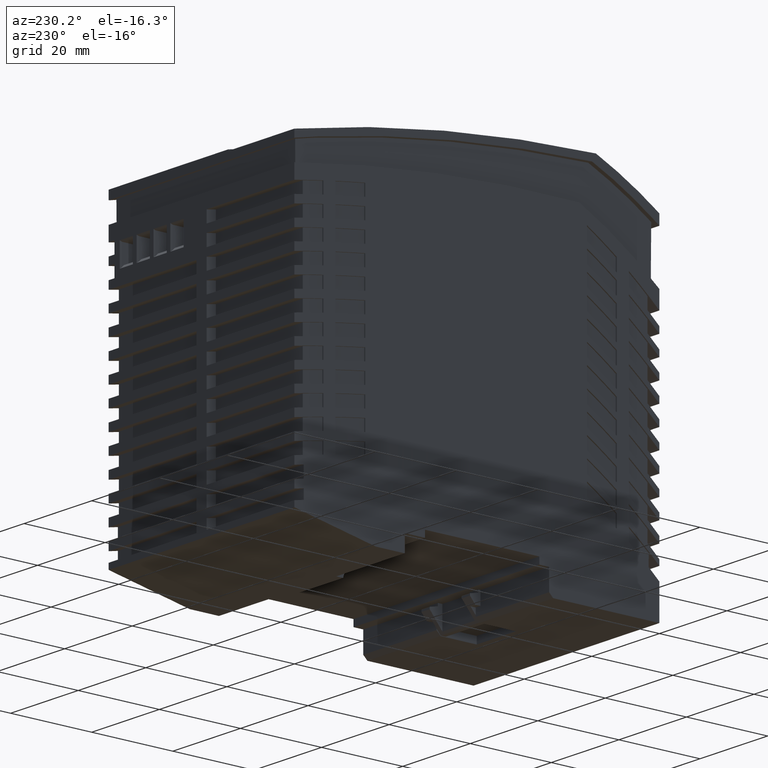
[diagram: clean part render]
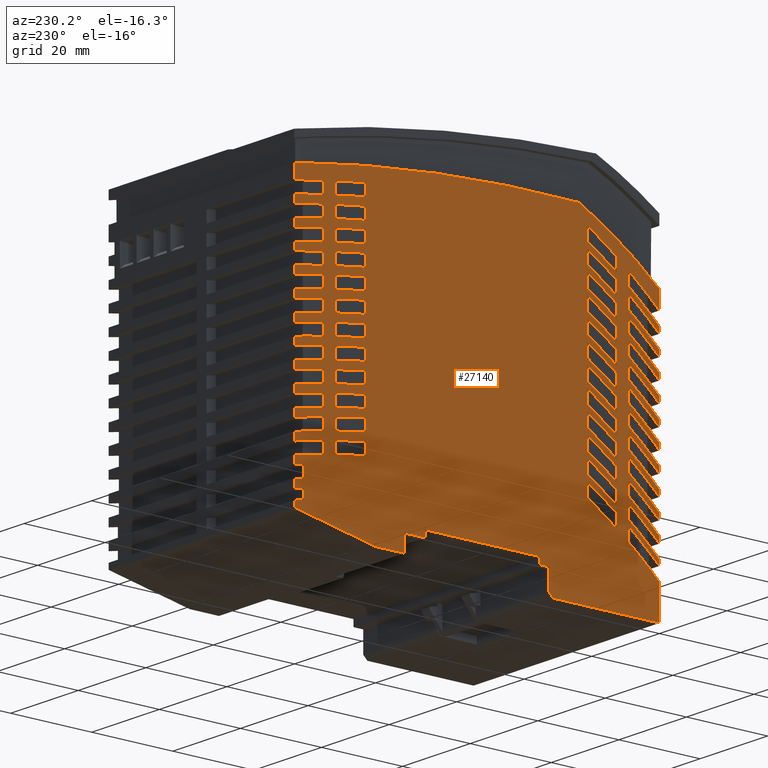
[diagram: same view with one face highlighted and labeled with its STEP entity id]
A machine part, auxiliary view. The second image highlights one B-rep face of the part: STEP entity #27140.
In plain terms, the highlighted planar face has unit normal (-1, 0, 0).
Its self-contained STEP definition (entity closure, byte-faithful):
#4980=CARTESIAN_POINT('',(-45.0015236073532,0.029072276211352,-54.));
#4990=VERTEX_POINT('',#4980);
#5390=CARTESIAN_POINT('',(-18.8015236073701,0.0290722762113518,-54.));
#5400=VERTEX_POINT('',#5390);
#5430=CARTESIAN_POINT('',(-0.00152360736710477,0.029072276211352,-54.));
#5440=DIRECTION('',(1.,0.,0.));
#5450=VECTOR('',#5440,1.);
#5460=LINE('',#5430,#5450);
#5470=EDGE_CURVE('',#4990,#5400,#5460,.T.);
#5680=CARTESIAN_POINT('',(-15.4015236073532,6.02907227621135,-54.));
#5690=VERTEX_POINT('',#5680);
#5860=CARTESIAN_POINT('',(-15.4015236073532,7.62907227621024,-54.));
#5870=VERTEX_POINT('',#5860);
#5900=CARTESIAN_POINT('',(-15.4015236073532,0.,-54.));
#5910=DIRECTION('',(0.,-1.,0.));
#5920=VECTOR('',#5910,1.);
#5930=LINE('',#5900,#5920);
#5940=EDGE_CURVE('',#5870,#5690,#5930,.T.);
#8470=CARTESIAN_POINT('',(-17.8015236073701,6.02907227621135,-54.));
#8480=VERTEX_POINT('',#8470);
#8510=CARTESIAN_POINT('',(-17.8015236073671,0.029072276211352,-54.));
#8520=DIRECTION('',(0.,1.,0.));
#8530=VECTOR('',#8520,1.);
#8540=LINE('',#8510,#8530);
#8550=CARTESIAN_POINT('',(-17.8015236073701,1.02907227621134,-54.));
#8560=VERTEX_POINT('',#8550);
#8570=EDGE_CURVE('',#8560,#8480,#8540,.T.);
#10510=CARTESIAN_POINT('',(53.9984763926336,-4.20937286839824,-54.));
#10520=DIRECTION('',(0.,0.,-1.));
#10530=DIRECTION('',(-1.,0.,0.));
#10540=AXIS2_PLACEMENT_3D('',#10510,#10520,#10530);
#10550=PLANE('',#10540);
#10560=CARTESIAN_POINT('',(27.5384763926328,0.,-54.));
#10570=DIRECTION('',(0.,1.,0.));
#10580=VECTOR('',#10570,1.);
#10590=LINE('',#10560,#10580);
#10600=CARTESIAN_POINT('',(27.5384763926329,47.3799822465971,-54.));
#10610=VERTEX_POINT('',#10600);
#10620=CARTESIAN_POINT('',(27.5384763926328,50.1585455806563,-54.));
#10630=VERTEX_POINT('',#10620);
#10640=EDGE_CURVE('',#10610,#10630,#10590,.T.);
#10650=ORIENTED_EDGE('',*,*,#10640,.F.);
#10660=CARTESIAN_POINT('',(-15.9369906466337,-268.590217186351,-54.));
#10670=DIRECTION('',(0.,0.,-1.));
#10680=DIRECTION('',(0.,-1.,0.));
#10690=AXIS2_PLACEMENT_3D('',#10660,#10670,#10680);
#10700=CIRCLE('',#10690,321.699999999658);
#10710=CARTESIAN_POINT('',(34.8684763926329,49.0726457968791,-54.));
#10720=VERTEX_POINT('',#10710);
#10730=EDGE_CURVE('',#10630,#10720,#10700,.T.);
#10740=ORIENTED_EDGE('',*,*,#10730,.F.);
#10750=CARTESIAN_POINT('',(34.8684763926329,0.,-54.));
#10760=DIRECTION('',(0.,-1.,0.));
#10770=VECTOR('',#10760,1.);
#10780=LINE('',#10750,#10770);
#10790=CARTESIAN_POINT('',(34.8684763926331,46.2845002536196,-54.));
#10800=VERTEX_POINT('',#10790);
#10810=EDGE_CURVE('',#10720,#10800,#10780,.T.);
#10820=ORIENTED_EDGE('',*,*,#10810,.F.);
#10830=CARTESIAN_POINT('',(-15.9369906467559,-268.590217187175,-54.));
#10840=DIRECTION('',(0.,0.,1.));
#10850=DIRECTION('',(0.,1.,0.));
#10860=AXIS2_PLACEMENT_3D('',#10830,#10840,#10850);
#10870=CIRCLE('',#10860,318.947147917191);
#10880=EDGE_CURVE('',#10800,#10610,#10870,.T.);
#10890=ORIENTED_EDGE('',*,*,#10880,.F.);
#10900=EDGE_LOOP('',(#10890,#10820,#10740,#10650));
#10910=FACE_BOUND('',#10900,.T.);
#10920=CARTESIAN_POINT('',(27.5384763926328,0.,-54.));
#10930=DIRECTION('',(0.,1.,0.));
#10940=VECTOR('',#10930,1.);
#10950=LINE('',#10920,#10940);
#10960=CARTESIAN_POINT('',(27.5384763926328,65.9386936083441,-54.));
#10970=VERTEX_POINT('',#10960);
#10980=CARTESIAN_POINT('',(27.5384763926327,68.719571828859,-54.));
#10990=VERTEX_POINT('',#10980);
#11000=EDGE_CURVE('',#10970,#10990,#10950,.T.);
#11010=ORIENTED_EDGE('',*,*,#11000,.F.);
#11020=CARTESIAN_POINT('',(-15.9369906467322,-268.590217187001,-54.));
#11030=DIRECTION('',(0.,0.,-1.));
#11040=DIRECTION('',(0.,-1.,0.));
#11050=AXIS2_PLACEMENT_3D('',#11020,#11030,#11040);
#11060=CIRCLE('',#11050,340.100000000316);
#11070=CARTESIAN_POINT('',(34.8684763926328,67.6936131098583,-54.));
#11080=VERTEX_POINT('',#11070);
#11090=EDGE_CURVE('',#10990,#11080,#11060,.T.);
#11100=ORIENTED_EDGE('',*,*,#11090,.F.);
#11110=CARTESIAN_POINT('',(34.8684763926329,0.,-54.));
#11120=DIRECTION('',(0.,-1.,0.));
#11130=VECTOR('',#11120,1.);
#11140=LINE('',#11110,#11130);
#11150=CARTESIAN_POINT('',(34.868476392633,64.9041799340345,-54.));
#11160=VERTEX_POINT('',#11150);
#11170=EDGE_CURVE('',#11080,#11160,#11140,.T.);
#11180=ORIENTED_EDGE('',*,*,#11170,.F.);
#11190=CARTESIAN_POINT('',(-15.9369906469088,-268.590217188247,-54.));
#11200=DIRECTION('',(0.,0.,1.));
#11210=DIRECTION('',(0.,1.,0.));
#11220=AXIS2_PLACEMENT_3D('',#11190,#11200,#11210);
#11230=CIRCLE('',#11220,337.342123656474);
#11240=EDGE_CURVE('',#11160,#10970,#11230,.T.);
#11250=ORIENTED_EDGE('',*,*,#11240,.F.);
#11260=EDGE_LOOP('',(#11250,#11180,#11100,#11010));
#11270=FACE_BOUND('',#11260,.T.);
#11280=CARTESIAN_POINT('',(-15.936990646752,-268.59021718709,-54.));
#11290=DIRECTION('',(0.,0.,1.));
#11300=DIRECTION('',(0.,1.,0.));
#11310=AXIS2_PLACEMENT_3D('',#11280,#11290,#11300);
#11320=CIRCLE('',#11310,323.545810516407);
#11330=CARTESIAN_POINT('',(34.8684763926331,50.9417781148335,-54.));
#11340=VERTEX_POINT('',#11330);
#11350=CARTESIAN_POINT('',(27.538476392633,52.0213472774905,-54.));
#11360=VERTEX_POINT('',#11350);
#11370=EDGE_CURVE('',#11340,#11360,#11320,.T.);
#11380=ORIENTED_EDGE('',*,*,#11370,.F.);
#11390=CARTESIAN_POINT('',(27.5384763926328,0.,-54.));
#11400=DIRECTION('',(0.,1.,0.));
#11410=VECTOR('',#11400,1.);
#11420=LINE('',#11390,#11410);
#11430=CARTESIAN_POINT('',(27.5384763926327,54.8005275258234,-54.));
#11440=VERTEX_POINT('',#11430);
#11450=EDGE_CURVE('',#11360,#11440,#11420,.T.);
#11460=ORIENTED_EDGE('',*,*,#11450,.F.);
#11470=CARTESIAN_POINT('',(-15.9369906465725,-268.590217185925,-54.));
#11480=DIRECTION('',(0.,0.,-1.));
#11490=DIRECTION('',(0.,-1.,0.));
#11500=AXIS2_PLACEMENT_3D('',#11470,#11480,#11490);
#11510=CIRCLE('',#11500,326.299999999228);
#11520=CARTESIAN_POINT('',(34.8684763926326,53.7302669884825,-54.));
#11530=VERTEX_POINT('',#11520);
#11540=EDGE_CURVE('',#11440,#11530,#11510,.T.);
#11550=ORIENTED_EDGE('',*,*,#11540,.F.);
#11560=CARTESIAN_POINT('',(34.8684763926329,0.,-54.));
#11570=DIRECTION('',(0.,-1.,0.));
#11580=VECTOR('',#11570,1.);
#11590=LINE('',#11560,#11580);
#11600=EDGE_CURVE('',#11530,#11340,#11590,.T.);
#11610=ORIENTED_EDGE('',*,*,#11600,.F.);
#11620=EDGE_LOOP('',(#11610,#11550,#11460,#11380));
#11630=FACE_BOUND('',#11620,.T.);
#11640=CARTESIAN_POINT('',(-15.936990646556,-268.590217185809,-54.));
#11650=DIRECTION('',(0.,0.,1.));
#11660=DIRECTION('',(0.,1.,0.));
#11670=AXIS2_PLACEMENT_3D('',#11640,#11650,#11660);
#11680=CIRCLE('',#11670,332.743301398711);
#11690=CARTESIAN_POINT('',(34.8684763926302,60.2515519747455,-54.));
#11700=VERTEX_POINT('',#11690);
#11710=CARTESIAN_POINT('',(27.5384763926328,61.3006562730329,-54.));
#11720=VERTEX_POINT('',#11710);
#11730=EDGE_CURVE('',#11700,#11720,#11680,.T.);
#11740=ORIENTED_EDGE('',*,*,#11730,.F.);
#11750=CARTESIAN_POINT('',(27.5384763926329,0.,-54.));
#11760=DIRECTION('',(0.,1.,0.));
#11770=VECTOR('',#11760,1.);
#11780=LINE('',#11750,#11770);
#11790=CARTESIAN_POINT('',(27.5384763926329,64.0809925169963,-54.));
#11800=VERTEX_POINT('',#11790);
#11810=EDGE_CURVE('',#11720,#11800,#11780,.T.);
#11820=ORIENTED_EDGE('',*,*,#11810,.F.);
#11830=CARTESIAN_POINT('',(-15.9369906466803,-268.59021718664,-54.));
#11840=DIRECTION('',(0.,0.,-1.));
#11850=DIRECTION('',(0.,-1.,0.));
#11860=AXIS2_PLACEMENT_3D('',#11830,#11840,#11850);
#11870=CIRCLE('',#11860,335.499999999951);
#11880=CARTESIAN_POINT('',(34.8684763926302,63.0406838447397,-54.));
#11890=VERTEX_POINT('',#11880);
#11900=EDGE_CURVE('',#11800,#11890,#11870,.T.);
#11910=ORIENTED_EDGE('',*,*,#11900,.F.);
#11920=CARTESIAN_POINT('',(34.8684763926302,0.,-54.));
#11930=DIRECTION('',(0.,-1.,0.));
#11940=VECTOR('',#11930,1.);
#11950=LINE('',#11920,#11940);
#11960=EDGE_CURVE('',#11890,#11700,#11950,.T.);
#11970=ORIENTED_EDGE('',*,*,#11960,.F.);
#11980=EDGE_LOOP('',(#11970,#11910,#11820,#11740));
#11990=FACE_BOUND('',#11980,.T.);
#12000=CARTESIAN_POINT('',(30.4869845880819,-28.8590205851877,-54.));
#12010=DIRECTION('',(0.,0.,-1.));
#12020=DIRECTION('',(0.,-1.,0.));
#12030=AXIS2_PLACEMENT_3D('',#12000,#12010,#12020);
#12040=CIRCLE('',#12030,110.999999999999);
#12050=CARTESIAN_POINT('',(-34.4715236073671,61.1487135992783,-54.));
#12060=VERTEX_POINT('',#12050);
#12070=CARTESIAN_POINT('',(-27.1415236073761,66.0090722762466,-54.));
#12080=VERTEX_POINT('',#12070);
#12090=EDGE_CURVE('',#12060,#12080,#12040,.T.);
#12100=ORIENTED_EDGE('',*,*,#12090,.F.);
#12110=CARTESIAN_POINT('',(-27.1415236073761,0.,-54.));
#12120=DIRECTION('',(0.,-1.,0.));
#12130=VECTOR('',#12120,1.);
#12140=LINE('',#12110,#12130);
#12150=CARTESIAN_POINT('',(-27.1415236073761,62.9090722762467,-54.));
#12160=VERTEX_POINT('',#12150);
#12170=EDGE_CURVE('',#12080,#12160,#12140,.T.);
#12180=ORIENTED_EDGE('',*,*,#12170,.F.);
#12190=CARTESIAN_POINT('',(30.4869845880708,-31.959020585174,-54.));
#12200=DIRECTION('',(0.,0.,1.));
#12210=DIRECTION('',(0.,1.,0.));
#12220=AXIS2_PLACEMENT_3D('',#12190,#12200,#12210);
#12230=CIRCLE('',#12220,110.999999999981);
#12240=CARTESIAN_POINT('',(-34.4715236073671,58.0487135992783,-54.));
#12250=VERTEX_POINT('',#12240);
#12260=EDGE_CURVE('',#12160,#12250,#12230,.T.);
#12270=ORIENTED_EDGE('',*,*,#12260,.F.);
#12280=CARTESIAN_POINT('',(-34.4715236073671,0.,-54.));
#12290=DIRECTION('',(0.,1.,0.));
#12300=VECTOR('',#12290,1.);
#12310=LINE('',#12280,#12300);
#12320=EDGE_CURVE('',#12250,#12060,#12310,.T.);
#12330=ORIENTED_EDGE('',*,*,#12320,.F.);
#12340=EDGE_LOOP('',(#12330,#12270,#12180,#12100));
#12350=FACE_BOUND('',#12340,.T.);
#12360=CARTESIAN_POINT('',(30.4869845880804,-27.3590205851859,-54.));
#12370=DIRECTION('',(0.,0.,1.));
#12380=DIRECTION('',(0.,1.,0.));
#12390=AXIS2_PLACEMENT_3D('',#12360,#12370,#12380);
#12400=CIRCLE('',#12390,110.999999999996);
#12410=CARTESIAN_POINT('',(-27.1415236073671,67.5090722762517,-54.));
#12420=VERTEX_POINT('',#12410);
#12430=CARTESIAN_POINT('',(-34.4715236073671,62.6487135992783,-54.));
#12440=VERTEX_POINT('',#12430);
#12450=EDGE_CURVE('',#12420,#12440,#12400,.T.);
#12460=ORIENTED_EDGE('',*,*,#12450,.F.);
#12470=CARTESIAN_POINT('',(-34.4715236073671,0.,-54.));
#12480=DIRECTION('',(0.,1.,0.));
#12490=VECTOR('',#12480,1.);
#12500=LINE('',#12470,#12490);
#12510=CARTESIAN_POINT('',(-34.4715236073672,65.7487135992782,-54.));
#12520=VERTEX_POINT('',#12510);
#12530=EDGE_CURVE('',#12440,#12520,#12500,.T.);
#12540=ORIENTED_EDGE('',*,*,#12530,.F.);
#12550=CARTESIAN_POINT('',(30.4869845880718,-24.2590205851755,-54.));
#12560=DIRECTION('',(0.,0.,-1.));
#12570=DIRECTION('',(0.,-1.,0.));
#12580=AXIS2_PLACEMENT_3D('',#12550,#12560,#12570);
#12590=CIRCLE('',#12580,110.999999999983);
#12600=CARTESIAN_POINT('',(-27.1415236073762,70.6090722762467,-54.));
#12610=VERTEX_POINT('',#12600);
#12620=EDGE_CURVE('',#12520,#12610,#12590,.T.);
#12630=ORIENTED_EDGE('',*,*,#12620,.F.);
#12640=CARTESIAN_POINT('',(-27.1415236073671,0.,-54.));
#12650=DIRECTION('',(0.,-1.,0.));
#12660=VECTOR('',#12650,1.);
#12670=LINE('',#12640,#12660);
#12680=EDGE_CURVE('',#12610,#12420,#12670,.T.);
#12690=ORIENTED_EDGE('',*,*,#12680,.F.);
#12700=EDGE_LOOP('',(#12690,#12630,#12540,#12460));
#12710=FACE_BOUND('',#12700,.T.);
#12720=CARTESIAN_POINT('',(30.4869845880796,-22.7590205851851,-54.));
#12730=DIRECTION('',(0.,0.,1.));
#12740=DIRECTION('',(0.,1.,0.));
#12750=AXIS2_PLACEMENT_3D('',#12720,#12730,#12740);
#12760=CIRCLE('',#12750,110.999999999995);
#12770=CARTESIAN_POINT('',(-27.1415236073695,72.1090722762506,-54.));
#12780=VERTEX_POINT('',#12770);
#12790=CARTESIAN_POINT('',(-34.4715236073671,67.2487135992783,-54.));
#12800=VERTEX_POINT('',#12790);
#12810=EDGE_CURVE('',#12780,#12800,#12760,.T.);
#12820=ORIENTED_EDGE('',*,*,#12810,.F.);
#12830=CARTESIAN_POINT('',(-34.4715236073671,0.,-54.));
#12840=DIRECTION('',(0.,1.,0.));
#12850=VECTOR('',#12840,1.);
#12860=LINE('',#12830,#12850);
#12870=CARTESIAN_POINT('',(-34.4715236073671,70.3487135992783,-54.));
#12880=VERTEX_POINT('',#12870);
#12890=EDGE_CURVE('',#12800,#12880,#12860,.T.);
#12900=ORIENTED_EDGE('',*,*,#12890,.F.);
#12910=CARTESIAN_POINT('',(30.4869845880767,-19.6590205851817,-54.));
#12920=DIRECTION('',(0.,0.,-1.));
#12930=DIRECTION('',(0.,-1.,0.));
#12940=AXIS2_PLACEMENT_3D('',#12910,#12920,#12930);
#12950=CIRCLE('',#12940,110.999999999991);
#12960=CARTESIAN_POINT('',(-27.1415236073695,75.2090722762508,-54.));
#12970=VERTEX_POINT('',#12960);
#12980=EDGE_CURVE('',#12880,#12970,#12950,.T.);
#12990=ORIENTED_EDGE('',*,*,#12980,.F.);
#13000=CARTESIAN_POINT('',(-27.1415236073695,0.,-54.));
#13010=DIRECTION('',(0.,-1.,0.));
#13020=VECTOR('',#13010,1.);
#13030=LINE('',#13000,#13020);
#13040=EDGE_CURVE('',#12970,#12780,#13030,.T.);
#13050=ORIENTED_EDGE('',*,*,#13040,.F.);
#13060=EDGE_LOOP('',(#13050,#12990,#12900,#12820));
#13070=FACE_BOUND('',#13060,.T.);
#13080=CARTESIAN_POINT('',(30.4869845880943,-68.7590205852013,-54.));
#13090=DIRECTION('',(0.,0.,1.));
#13100=DIRECTION('',(0.,1.,0.));
#13110=AXIS2_PLACEMENT_3D('',#13080,#13090,#13100);
#13120=CIRCLE('',#13110,111.000000000017);
#13130=CARTESIAN_POINT('',(-27.1415236073695,26.1090722762509,-54.));
#13140=VERTEX_POINT('',#13130);
#13150=CARTESIAN_POINT('',(-34.4715236073671,21.2487135992781,-54.));
#13160=VERTEX_POINT('',#13150);
#13170=EDGE_CURVE('',#13140,#13160,#13120,.T.);
#13180=ORIENTED_EDGE('',*,*,#13170,.F.);
#13190=CARTESIAN_POINT('',(-34.4715236073671,0.,-54.));
#13200=DIRECTION('',(0.,1.,0.));
#13210=VECTOR('',#13200,1.);
#13220=LINE('',#13190,#13210);
#13230=CARTESIAN_POINT('',(-34.4715236073671,24.3487135992711,-54.));
#13240=VERTEX_POINT('',#13230);
#13250=EDGE_CURVE('',#13160,#13240,#13220,.T.);
#13260=ORIENTED_EDGE('',*,*,#13250,.F.);
#13270=CARTESIAN_POINT('',(30.4869845880981,-65.6590205851951,-54.));
#13280=DIRECTION('',(0.,0.,-1.));
#13290=DIRECTION('',(0.,-1.,0.));
#13300=AXIS2_PLACEMENT_3D('',#13270,#13280,#13290);
#13310=CIRCLE('',#13300,111.000000000008);
#13320=CARTESIAN_POINT('',(-27.1415236073695,29.2090722762451,-54.));
#13330=VERTEX_POINT('',#13320);
#13340=EDGE_CURVE('',#13240,#13330,#13310,.T.);
#13350=ORIENTED_EDGE('',*,*,#13340,.F.);
#13360=CARTESIAN_POINT('',(-27.1415236073695,0.,-54.));
#13370=DIRECTION('',(0.,-1.,0.));
#13380=VECTOR('',#13370,1.);
#13390=LINE('',#13360,#13380);
#13400=EDGE_CURVE('',#13330,#13140,#13390,.T.);
#13410=ORIENTED_EDGE('',*,*,#13400,.F.);
#13420=EDGE_LOOP('',(#13410,#13350,#13260,#13180));
#13430=FACE_BOUND('',#13420,.T.);
#13440=CARTESIAN_POINT('',(30.4869845880642,-41.1590205851657,-54.));
#13450=DIRECTION('',(0.,0.,1.));
#13460=DIRECTION('',(0.,1.,0.));
#13470=AXIS2_PLACEMENT_3D('',#13440,#13450,#13460);
#13480=CIRCLE('',#13470,110.99999999997);
#13490=CARTESIAN_POINT('',(-27.1415236073672,53.709072276252,-54.));
#13500=VERTEX_POINT('',#13490);
#13510=CARTESIAN_POINT('',(-34.4715236073671,48.8487135992782,-54.));
#13520=VERTEX_POINT('',#13510);
#13530=EDGE_CURVE('',#13500,#13520,#13480,.T.);
#13540=ORIENTED_EDGE('',*,*,#13530,.F.);
#13550=CARTESIAN_POINT('',(-34.4715236073671,0.,-54.));
#13560=DIRECTION('',(0.,1.,0.));
#13570=VECTOR('',#13560,1.);
#13580=LINE('',#13550,#13570);
#13590=CARTESIAN_POINT('',(-34.4715236073671,51.9487135992782,-54.));
#13600=VERTEX_POINT('',#13590);
#13610=EDGE_CURVE('',#13520,#13600,#13580,.T.);
#13620=ORIENTED_EDGE('',*,*,#13610,.F.);
#13630=CARTESIAN_POINT('',(30.4869845880677,-38.0590205851703,-54.));
#13640=DIRECTION('',(0.,0.,-1.));
#13650=DIRECTION('',(0.,-1.,0.));
#13660=AXIS2_PLACEMENT_3D('',#13630,#13640,#13650);
#13670=CIRCLE('',#13660,110.999999999976);
#13680=CARTESIAN_POINT('',(-27.1415236073671,56.8090722762519,-54.));
#13690=VERTEX_POINT('',#13680);
#13700=EDGE_CURVE('',#13600,#13690,#13670,.T.);
#13710=ORIENTED_EDGE('',*,*,#13700,.F.);
#13720=CARTESIAN_POINT('',(-27.1415236073671,0.,-54.));
#13730=DIRECTION('',(0.,-1.,0.));
#13740=VECTOR('',#13730,1.);
#13750=LINE('',#13720,#13740);
#13760=EDGE_CURVE('',#13690,#13500,#13750,.T.);
#13770=ORIENTED_EDGE('',*,*,#13760,.F.);
#13780=EDGE_LOOP('',(#13770,#13710,#13620,#13540));
#13790=FACE_BOUND('',#13780,.T.);
#13800=CARTESIAN_POINT('',(27.5384763926328,0.,-54.));
#13810=DIRECTION('',(0.,1.,0.));
#13820=VECTOR('',#13810,1.);
#13830=LINE('',#13800,#13820);
#13840=CARTESIAN_POINT('',(27.5384763926329,42.7374100365078,-54.));
#13850=VERTEX_POINT('',#13840);
#13860=CARTESIAN_POINT('',(27.5384763926327,45.515328395864,-54.));
#13870=VERTEX_POINT('',#13860);
#13880=EDGE_CURVE('',#13850,#13870,#13830,.T.);
#13890=ORIENTED_EDGE('',*,*,#13880,.F.);
#13900=CARTESIAN_POINT('',(-15.936990646706,-268.590217186836,-54.));
#13910=DIRECTION('',(0.,0.,-1.));
#13920=DIRECTION('',(0.,-1.,0.));
#13930=AXIS2_PLACEMENT_3D('',#13900,#13910,#13920);
#13940=CIRCLE('',#13930,317.100000000148);
#13950=CARTESIAN_POINT('',(34.8684763926329,44.4133203634749,-54.));
#13960=VERTEX_POINT('',#13950);
#13970=EDGE_CURVE('',#13870,#13960,#13940,.T.);
#13980=ORIENTED_EDGE('',*,*,#13970,.F.);
#13990=CARTESIAN_POINT('',(34.8684763926329,0.,-54.));
#14000=DIRECTION('',(0.,-1.,0.));
#14010=VECTOR('',#14000,1.);
#14020=LINE('',#13990,#14010);
#14030=CARTESIAN_POINT('',(34.8684763926329,41.6255339054006,-54.));
#14040=VERTEX_POINT('',#14030);
#14050=EDGE_CURVE('',#13960,#14040,#14020,.T.);
#14060=ORIENTED_EDGE('',*,*,#14050,.F.);
#14070=CARTESIAN_POINT('',(-15.9369906467414,-268.590217187015,-54.));
#14080=DIRECTION('',(0.,0.,1.));
#14090=DIRECTION('',(0.,1.,0.));
#14100=AXIS2_PLACEMENT_3D('',#14070,#14080,#14090);
#14110=CIRCLE('',#14100,314.348544941631);
#14120=EDGE_CURVE('',#14040,#13850,#14110,.T.);
#14130=ORIENTED_EDGE('',*,*,#14120,.F.);
#14140=EDGE_LOOP('',(#14130,#14060,#13980,#13890));
#14150=FACE_BOUND('',#14140,.T.);
#14160=CARTESIAN_POINT('',(30.4869845880638,-36.5590205851661,-54.));
#14170=DIRECTION('',(0.,0.,1.));
#14180=DIRECTION('',(0.,1.,0.));
#14190=AXIS2_PLACEMENT_3D('',#14160,#14170,#14180);
#14200=CIRCLE('',#14190,110.999999999971);
#14210=CARTESIAN_POINT('',(-27.1415236073673,58.3090722762521,-54.));
#14220=VERTEX_POINT('',#14210);
#14230=CARTESIAN_POINT('',(-34.4715236073671,53.4487135992783,-54.));
#14240=VERTEX_POINT('',#14230);
#14250=EDGE_CURVE('',#14220,#14240,#14200,.T.);
#14260=ORIENTED_EDGE('',*,*,#14250,.F.);
#14270=CARTESIAN_POINT('',(-34.4715236073671,0.,-54.));
#14280=DIRECTION('',(0.,1.,0.));
#14290=VECTOR('',#14280,1.);
#14300=LINE('',#14270,#14290);
#14310=CARTESIAN_POINT('',(-34.4715236073671,56.5487135992783,-54.));
#14320=VERTEX_POINT('',#14310);
#14330=EDGE_CURVE('',#14240,#14320,#14300,.T.);
#14340=ORIENTED_EDGE('',*,*,#14330,.F.);
#14350=CARTESIAN_POINT('',(30.4869845880729,-33.4590205851777,-54.));
#14360=DIRECTION('',(0.,0.,-1.));
#14370=DIRECTION('',(0.,-1.,0.));
#14380=AXIS2_PLACEMENT_3D('',#14350,#14360,#14370);
#14390=CIRCLE('',#14380,110.999999999985);
#14400=CARTESIAN_POINT('',(-27.1415236073673,61.409072276252,-54.));
#14410=VERTEX_POINT('',#14400);
#14420=EDGE_CURVE('',#14320,#14410,#14390,.T.);
#14430=ORIENTED_EDGE('',*,*,#14420,.F.);
#14440=CARTESIAN_POINT('',(-27.1415236073671,0.,-54.));
#14450=DIRECTION('',(0.,-1.,0.));
#14460=VECTOR('',#14450,1.);
#14470=LINE('',#14440,#14460);
#14480=EDGE_CURVE('',#14410,#14220,#14470,.T.);
#14490=ORIENTED_EDGE('',*,*,#14480,.F.);
#14500=EDGE_LOOP('',(#14490,#14430,#14340,#14260));
#14510=FACE_BOUND('',#14500,.T.);
#14520=CARTESIAN_POINT('',(27.5384763926328,0.,-54.));
#14530=DIRECTION('',(0.,1.,0.));
#14540=VECTOR('',#14530,1.);
#14550=LINE('',#14520,#14540);
#14560=CARTESIAN_POINT('',(27.5384763926329,33.4484253753524,-54.));
#14570=VERTEX_POINT('',#14560);
#14580=CARTESIAN_POINT('',(27.5384763926312,36.2249624971864,-54.));
#14590=VERTEX_POINT('',#14580);
#14600=EDGE_CURVE('',#14570,#14590,#14550,.T.);
#14610=ORIENTED_EDGE('',*,*,#14600,.F.);
#14620=CARTESIAN_POINT('',(-15.9369906467409,-268.590217187012,-54.));
#14630=DIRECTION('',(0.,0.,-1.));
#14640=DIRECTION('',(0.,-1.,0.));
#14650=AXIS2_PLACEMENT_3D('',#14620,#14630,#14640);
#14660=CIRCLE('',#14650,307.900000000327);
#14670=CARTESIAN_POINT('',(34.8684763926329,35.0892429664742,-54.));
#14680=VERTEX_POINT('',#14670);
#14690=EDGE_CURVE('',#14590,#14680,#14660,.T.);
#14700=ORIENTED_EDGE('',*,*,#14690,.F.);
#14710=CARTESIAN_POINT('',(34.8684763926329,0.,-54.));
#14720=DIRECTION('',(0.,-1.,0.));
#14730=VECTOR('',#14720,1.);
#14740=LINE('',#14710,#14730);
#14750=CARTESIAN_POINT('',(34.8684763926329,32.3022259785128,-54.));
#14760=VERTEX_POINT('',#14750);
#14770=EDGE_CURVE('',#14680,#14760,#14740,.T.);
#14780=ORIENTED_EDGE('',*,*,#14770,.F.);
#14790=CARTESIAN_POINT('',(-15.9369906467734,-268.590217187245,-54.));
#14800=DIRECTION('',(0.,0.,1.));
#14810=DIRECTION('',(0.,1.,0.));
#14820=AXIS2_PLACEMENT_3D('',#14790,#14800,#14810);
#14830=CIRCLE('',#14820,305.151532579063);
#14840=EDGE_CURVE('',#14760,#14570,#14830,.T.);
#14850=ORIENTED_EDGE('',*,*,#14840,.F.);
#14860=EDGE_LOOP('',(#14850,#14780,#14700,#14610));
#14870=FACE_BOUND('',#14860,.T.);
#14880=CARTESIAN_POINT('',(30.4869845880775,-45.759020585182,-54.));
#14890=DIRECTION('',(0.,0.,1.));
#14900=DIRECTION('',(0.,1.,0.));
#14910=AXIS2_PLACEMENT_3D('',#14880,#14890,#14900);
#14920=CIRCLE('',#14910,110.999999999991);
#14930=CARTESIAN_POINT('',(-27.1415236073671,49.1090722762521,-54.));
#14940=VERTEX_POINT('',#14930);
#14950=CARTESIAN_POINT('',(-34.4715236073671,44.2487135992782,-54.));
#14960=VERTEX_POINT('',#14950);
#14970=EDGE_CURVE('',#14940,#14960,#14920,.T.);
#14980=ORIENTED_EDGE('',*,*,#14970,.F.);
#14990=CARTESIAN_POINT('',(-34.4715236073671,0.,-54.));
#15000=DIRECTION('',(0.,1.,0.));
#15010=VECTOR('',#15000,1.);
#15020=LINE('',#14990,#15010);
#15030=CARTESIAN_POINT('',(-34.4715236073671,47.3487135992711,-54.));
#15040=VERTEX_POINT('',#15030);
#15050=EDGE_CURVE('',#14960,#15040,#15020,.T.);
#15060=ORIENTED_EDGE('',*,*,#15050,.F.);
#15070=CARTESIAN_POINT('',(30.4869845880979,-42.6590205851944,-54.));
#15080=DIRECTION('',(0.,0.,-1.));
#15090=DIRECTION('',(0.,-1.,0.));
#15100=AXIS2_PLACEMENT_3D('',#15070,#15080,#15090);
#15110=CIRCLE('',#15100,111.000000000008);
#15120=CARTESIAN_POINT('',(-27.1415236073671,52.2090722762449,-54.));
#15130=VERTEX_POINT('',#15120);
#15140=EDGE_CURVE('',#15040,#15130,#15110,.T.);
#15150=ORIENTED_EDGE('',*,*,#15140,.F.);
#15160=CARTESIAN_POINT('',(-27.1415236073671,0.,-54.));
#15170=DIRECTION('',(0.,-1.,0.));
#15180=VECTOR('',#15170,1.);
#15190=LINE('',#15160,#15180);
#15200=EDGE_CURVE('',#15130,#14940,#15190,.T.);
#15210=ORIENTED_EDGE('',*,*,#15200,.F.);
#15220=EDGE_LOOP('',(#15210,#15150,#15060,#14980));
#15230=FACE_BOUND('',#15220,.T.);
#15240=CARTESIAN_POINT('',(-27.1415236073671,0.,-54.));
#15250=DIRECTION('',(0.,-1.,0.));
#15260=VECTOR('',#15250,1.);
#15270=LINE('',#15240,#15260);
#15280=CARTESIAN_POINT('',(-27.1415236073696,24.6090722762507,-54.));
#15290=VERTEX_POINT('',#15280);
#15300=CARTESIAN_POINT('',(-27.1415236073673,21.5090722762521,-54.));
#15310=VERTEX_POINT('',#15300);
#15320=EDGE_CURVE('',#15290,#15310,#15270,.T.);
#15330=ORIENTED_EDGE('',*,*,#15320,.F.);
#15340=CARTESIAN_POINT('',(30.4869845880875,-73.3590205851953,-54.));
#15350=DIRECTION('',(0.,0.,1.));
#15360=DIRECTION('',(0.,1.,0.));
#15370=AXIS2_PLACEMENT_3D('',#15340,#15350,#15360);
#15380=CIRCLE('',#15370,111.000000000008);
#15390=CARTESIAN_POINT('',(-34.4715236073681,16.6487135992776,-54.));
#15400=VERTEX_POINT('',#15390);
#15410=EDGE_CURVE('',#15310,#15400,#15380,.T.);
#15420=ORIENTED_EDGE('',*,*,#15410,.F.);
#15430=CARTESIAN_POINT('',(-34.4715236073671,0.,-54.));
#15440=DIRECTION('',(0.,1.,0.));
#15450=VECTOR('',#15440,1.);
#15460=LINE('',#15430,#15450);
#15470=CARTESIAN_POINT('',(-34.4715236073671,19.7487135992783,-54.));
#15480=VERTEX_POINT('',#15470);
#15490=EDGE_CURVE('',#15400,#15480,#15460,.T.);
#15500=ORIENTED_EDGE('',*,*,#15490,.F.);
#15510=CARTESIAN_POINT('',(30.4869845880677,-70.2590205851652,-54.));
#15520=DIRECTION('',(0.,0.,-1.));
#15530=DIRECTION('',(0.,-1.,0.));
#15540=AXIS2_PLACEMENT_3D('',#15510,#15520,#15530);
#15550=CIRCLE('',#15540,110.999999999972);
#15560=EDGE_CURVE('',#15480,#15290,#15550,.T.);
#15570=ORIENTED_EDGE('',*,*,#15560,.F.);
#15580=EDGE_LOOP('',(#15570,#15500,#15420,#15330));
#15590=FACE_BOUND('',#15580,.T.);
#15600=CARTESIAN_POINT('',(30.4869845880751,-50.3590205851798,-54.));
#15610=DIRECTION('',(0.,0.,1.));
#15620=DIRECTION('',(0.,1.,0.));
#15630=AXIS2_PLACEMENT_3D('',#15600,#15610,#15620);
#15640=CIRCLE('',#15630,110.999999999988);
#15650=CARTESIAN_POINT('',(-27.1415236073762,44.5090722762466,-54.));
#15660=VERTEX_POINT('',#15650);
#15670=CARTESIAN_POINT('',(-34.4715236073671,39.6487135992783,-54.));
#15680=VERTEX_POINT('',#15670);
#15690=EDGE_CURVE('',#15660,#15680,#15640,.T.);
#15700=ORIENTED_EDGE('',*,*,#15690,.F.);
#15710=CARTESIAN_POINT('',(-34.4715236073671,0.,-54.));
#15720=DIRECTION('',(0.,1.,0.));
#15730=VECTOR('',#15720,1.);
#15740=LINE('',#15710,#15730);
#15750=CARTESIAN_POINT('',(-34.4715236073671,42.7487135992782,-54.));
#15760=VERTEX_POINT('',#15750);
#15770=EDGE_CURVE('',#15680,#15760,#15740,.T.);
#15780=ORIENTED_EDGE('',*,*,#15770,.F.);
#15790=CARTESIAN_POINT('',(30.4869845880751,-47.259020585179,-54.));
#15800=DIRECTION('',(0.,0.,-1.));
#15810=DIRECTION('',(0.,-1.,0.));
#15820=AXIS2_PLACEMENT_3D('',#15790,#15800,#15810);
#15830=CIRCLE('',#15820,110.999999999988);
#15840=CARTESIAN_POINT('',(-27.1415236073761,47.6090722762466,-54.));
#15850=VERTEX_POINT('',#15840);
#15860=EDGE_CURVE('',#15760,#15850,#15830,.T.);
#15870=ORIENTED_EDGE('',*,*,#15860,.F.);
#15880=CARTESIAN_POINT('',(-27.1415236073761,0.,-54.));
#15890=DIRECTION('',(0.,-1.,0.));
#15900=VECTOR('',#15890,1.);
#15910=LINE('',#15880,#15900);
#15920=EDGE_CURVE('',#15850,#15660,#15910,.T.);
#15930=ORIENTED_EDGE('',*,*,#15920,.F.);
#15940=EDGE_LOOP('',(#15930,#15870,#15780,#15700));
#15950=FACE_BOUND('',#15940,.T.);
#15960=CARTESIAN_POINT('',(27.5384763926329,0.,-54.));
#15970=DIRECTION('',(0.,1.,0.));
#15980=VECTOR('',#15970,1.);
#15990=LINE('',#15960,#15980);
#16000=CARTESIAN_POINT('',(27.5384763926329,38.0935767878502,-54.));
#16010=VERTEX_POINT('',#16000);
#16020=CARTESIAN_POINT('',(27.5384763926329,40.8708203700819,-54.));
#16030=VERTEX_POINT('',#16020);
#16040=EDGE_CURVE('',#16010,#16030,#15990,.T.);
#16050=ORIENTED_EDGE('',*,*,#16040,.F.);
#16060=CARTESIAN_POINT('',(-15.9369906467455,-268.590217187076,-54.));
#16070=DIRECTION('',(0.,0.,-1.));
#16080=DIRECTION('',(0.,-1.,0.));
#16090=AXIS2_PLACEMENT_3D('',#16060,#16070,#16080);
#16100=CIRCLE('',#16090,312.500000000392);
#16110=CARTESIAN_POINT('',(34.8684763926329,39.7522134305013,-54.));
#16120=VERTEX_POINT('',#16110);
#16130=EDGE_CURVE('',#16030,#16120,#16100,.T.);
#16140=ORIENTED_EDGE('',*,*,#16130,.F.);
#16150=CARTESIAN_POINT('',(34.8684763926329,0.,-54.));
#16160=DIRECTION('',(0.,-1.,0.));
#16170=VECTOR('',#16160,1.);
#16180=LINE('',#16150,#16170);
#16190=CARTESIAN_POINT('',(34.8684763926329,36.964802801236,-54.));
#16200=VERTEX_POINT('',#16190);
#16210=EDGE_CURVE('',#16120,#16200,#16180,.T.);
#16220=ORIENTED_EDGE('',*,*,#16210,.F.);
#16230=CARTESIAN_POINT('',(-15.936990646578,-268.590217186002,-54.));
#16240=DIRECTION('',(0.,0.,1.));
#16250=DIRECTION('',(0.,1.,0.));
#16260=AXIS2_PLACEMENT_3D('',#16230,#16240,#16250);
#16270=CIRCLE('',#16260,309.750005198505);
#16280=EDGE_CURVE('',#16200,#16010,#16270,.T.);
#16290=ORIENTED_EDGE('',*,*,#16280,.F.);
#16300=EDGE_LOOP('',(#16290,#16220,#16140,#16050));
#16310=FACE_BOUND('',#16300,.T.);
#16320=CARTESIAN_POINT('',(30.4869845880761,-64.1590205851817,-54.));
#16330=DIRECTION('',(0.,0.,1.));
#16340=DIRECTION('',(0.,1.,0.));
#16350=AXIS2_PLACEMENT_3D('',#16320,#16330,#16340);
#16360=CIRCLE('',#16350,110.99999999999);
#16370=CARTESIAN_POINT('',(-27.1415236073677,30.7090722762517,-54.));
#16380=VERTEX_POINT('',#16370);
#16390=CARTESIAN_POINT('',(-34.4715236073701,25.848713599276,-54.));
#16400=VERTEX_POINT('',#16390);
#16410=EDGE_CURVE('',#16380,#16400,#16360,.T.);
#16420=ORIENTED_EDGE('',*,*,#16410,.F.);
#16430=CARTESIAN_POINT('',(-34.4715236073671,0.,-54.));
#16440=DIRECTION('',(0.,1.,0.));
#16450=VECTOR('',#16440,1.);
#16460=LINE('',#16430,#16450);
#16470=CARTESIAN_POINT('',(-34.4715236073671,28.9487135992783,-54.));
#16480=VERTEX_POINT('',#16470);
#16490=EDGE_CURVE('',#16400,#16480,#16460,.T.);
#16500=ORIENTED_EDGE('',*,*,#16490,.F.);
#16510=CARTESIAN_POINT('',(30.4869845880758,-61.0590205851801,-54.));
#16520=DIRECTION('',(0.,0.,-1.));
#16530=DIRECTION('',(0.,-1.,0.));
#16540=AXIS2_PLACEMENT_3D('',#16510,#16520,#16530);
#16550=CIRCLE('',#16540,110.999999999989);
#16560=CARTESIAN_POINT('',(-27.1415236073696,33.8090722762507,-54.));
#16570=VERTEX_POINT('',#16560);
#16580=EDGE_CURVE('',#16480,#16570,#16550,.T.);
#16590=ORIENTED_EDGE('',*,*,#16580,.F.);
#16600=CARTESIAN_POINT('',(-27.1415236073671,0.,-54.));
#16610=DIRECTION('',(0.,-1.,0.));
#16620=VECTOR('',#16610,1.);
#16630=LINE('',#16600,#16620);
#16640=EDGE_CURVE('',#16570,#16380,#16630,.T.);
#16650=ORIENTED_EDGE('',*,*,#16640,.F.);
#16660=EDGE_LOOP('',(#16650,#16590,#16500,#16420));
#16670=FACE_BOUND('',#16660,.T.);
#16680=CARTESIAN_POINT('',(-15.9369906466847,-268.590217186677,-54.));
#16690=DIRECTION('',(0.,0.,1.));
#16700=DIRECTION('',(0.,1.,0.));
#16710=AXIS2_PLACEMENT_3D('',#16680,#16690,#16700);
#16720=CIRCLE('',#16710,341.940993439088);
#16730=CARTESIAN_POINT('',(34.8684763926329,69.555383868589,-54.));
#16740=VERTEX_POINT('',#16730);
#16750=CARTESIAN_POINT('',(27.5384763926328,70.5757108777786,-54.));
#16760=VERTEX_POINT('',#16750);
#16770=EDGE_CURVE('',#16740,#16760,#16720,.T.);
#16780=ORIENTED_EDGE('',*,*,#16770,.F.);
#16790=CARTESIAN_POINT('',(27.5384763926328,0.,-54.));
#16800=DIRECTION('',(0.,1.,0.));
#16810=VECTOR('',#16800,1.);
#16820=LINE('',#16790,#16810);
#16830=CARTESIAN_POINT('',(27.5384763926328,73.357108823785,-54.));
#16840=VERTEX_POINT('',#16830);
#16850=EDGE_CURVE('',#16760,#16840,#16820,.T.);
#16860=ORIENTED_EDGE('',*,*,#16850,.F.);
#16870=CARTESIAN_POINT('',(-15.9369906467393,-268.590217187047,-54.));
#16880=DIRECTION('',(0.,0.,-1.));
#16890=DIRECTION('',(0.,-1.,0.));
#16900=AXIS2_PLACEMENT_3D('',#16870,#16880,#16890);
#16910=CIRCLE('',#16900,344.700000000362);
#16920=CARTESIAN_POINT('',(34.8684763926329,72.345105886349,-54.));
#16930=VERTEX_POINT('',#16920);
#16940=EDGE_CURVE('',#16840,#16930,#16910,.T.);
#16950=ORIENTED_EDGE('',*,*,#16940,.F.);
#16960=CARTESIAN_POINT('',(34.8684763926329,0.,-54.));
#16970=DIRECTION('',(0.,-1.,0.));
#16980=VECTOR('',#16970,1.);
#16990=LINE('',#16960,#16980);
#17000=EDGE_CURVE('',#16930,#16740,#16990,.T.);
#17010=ORIENTED_EDGE('',*,*,#17000,.F.);
#17020=EDGE_LOOP('',(#17010,#16950,#16860,#16780));
#17030=FACE_BOUND('',#17020,.T.);
#17040=CARTESIAN_POINT('',(27.5384763926329,0.,-54.));
#17050=DIRECTION('',(0.,1.,0.));
#17060=VECTOR('',#17050,1.);
#17070=LINE('',#17040,#17060);
#17080=CARTESIAN_POINT('',(27.5384763926329,24.1539216867124,-54.));
#17090=VERTEX_POINT('',#17080);
#17100=CARTESIAN_POINT('',(27.5384763926329,26.9289425402452,-54.));
#17110=VERTEX_POINT('',#17100);
#17120=EDGE_CURVE('',#17090,#17110,#17070,.T.);
#17130=ORIENTED_EDGE('',*,*,#17120,.F.);
#17140=CARTESIAN_POINT('',(-15.9369906466327,-268.590217186336,-54.));
#17150=DIRECTION('',(0.,0.,-1.));
#17160=DIRECTION('',(0.,-1.,0.));
#17170=AXIS2_PLACEMENT_3D('',#17140,#17150,#17160);
#17180=CIRCLE('',#17170,298.699999999643);
#17190=CARTESIAN_POINT('',(34.8684763926329,25.7573571517395,-54.));
#17200=VERTEX_POINT('',#17190);
#17210=EDGE_CURVE('',#17110,#17200,#17180,.T.);
#17220=ORIENTED_EDGE('',*,*,#17210,.F.);
#17230=CARTESIAN_POINT('',(34.8684763926329,0.,-54.));
#17240=DIRECTION('',(0.,-1.,0.));
#17250=VECTOR('',#17240,1.);
#17260=LINE('',#17230,#17250);
#17270=CARTESIAN_POINT('',(34.8684763926329,22.9711856051293,-54.));
#17280=VERTEX_POINT('',#17270);
#17290=EDGE_CURVE('',#17200,#17280,#17260,.T.);
#17300=ORIENTED_EDGE('',*,*,#17290,.F.);
#17310=CARTESIAN_POINT('',(-15.9369906464696,-268.590217185349,-54.));
#17320=DIRECTION('',(0.,0.,1.));
#17330=DIRECTION('',(0.,1.,0.));
#17340=AXIS2_PLACEMENT_3D('',#17310,#17320,#17330);
#17350=CIRCLE('',#17340,295.954805803543);
#17360=EDGE_CURVE('',#17280,#17090,#17350,.T.);
#17370=ORIENTED_EDGE('',*,*,#17360,.F.);
#17380=EDGE_LOOP('',(#17370,#17300,#17220,#17130));
#17390=FACE_BOUND('',#17380,.T.);
#17400=CARTESIAN_POINT('',(30.4869845880737,-54.9590205851778,-54.));
#17410=DIRECTION('',(0.,0.,1.));
#17420=DIRECTION('',(0.,1.,0.));
#17430=AXIS2_PLACEMENT_3D('',#17400,#17410,#17420);
#17440=CIRCLE('',#17430,110.999999999986);
#17450=CARTESIAN_POINT('',(-27.1415236073761,39.9090722762466,-54.));
#17460=VERTEX_POINT('',#17450);
#17470=CARTESIAN_POINT('',(-34.4715236073671,35.0487135992782,-54.));
#17480=VERTEX_POINT('',#17470);
#17490=EDGE_CURVE('',#17460,#17480,#17440,.T.);
#17500=ORIENTED_EDGE('',*,*,#17490,.F.);
#17510=CARTESIAN_POINT('',(-34.4715236073671,0.,-54.));
#17520=DIRECTION('',(0.,1.,0.));
#17530=VECTOR('',#17520,1.);
#17540=LINE('',#17510,#17530);
#17550=CARTESIAN_POINT('',(-34.4715236073671,38.1487135992783,-54.));
#17560=VERTEX_POINT('',#17550);
#17570=EDGE_CURVE('',#17480,#17560,#17540,.T.);
#17580=ORIENTED_EDGE('',*,*,#17570,.F.);
#17590=CARTESIAN_POINT('',(30.4869845880908,-51.8590205851979,-54.));
#17600=DIRECTION('',(0.,0.,-1.));
#17610=DIRECTION('',(0.,-1.,0.));
#17620=AXIS2_PLACEMENT_3D('',#17590,#17600,#17610);
#17630=CIRCLE('',#17620,111.000000000012);
#17640=CARTESIAN_POINT('',(-27.1415236073761,43.0090722762467,-54.));
#17650=VERTEX_POINT('',#17640);
#17660=EDGE_CURVE('',#17560,#17650,#17630,.T.);
#17670=ORIENTED_EDGE('',*,*,#17660,.F.);
#17680=CARTESIAN_POINT('',(-27.1415236073761,0.,-54.));
#17690=DIRECTION('',(0.,-1.,0.));
#17700=VECTOR('',#17690,1.);
#17710=LINE('',#17680,#17700);
#17720=EDGE_CURVE('',#17650,#17460,#17710,.T.);
#17730=ORIENTED_EDGE('',*,*,#17720,.F.);
#17740=EDGE_LOOP('',(#17730,#17670,#17580,#17500));
#17750=FACE_BOUND('',#17740,.T.);
#17760=CARTESIAN_POINT('',(27.5384763926329,0.,-54.));
#17770=DIRECTION('',(0.,1.,0.));
#17780=VECTOR('',#17770,1.);
#17790=LINE('',#17760,#17780);
#17800=CARTESIAN_POINT('',(27.5384763926331,56.6615559528677,-54.));
#17810=VERTEX_POINT('',#17800);
#17820=CARTESIAN_POINT('',(27.5384763926328,59.4413266710827,-54.));
#17830=VERTEX_POINT('',#17820);
#17840=EDGE_CURVE('',#17810,#17830,#17790,.T.);
#17850=ORIENTED_EDGE('',*,*,#17840,.F.);
#17860=CARTESIAN_POINT('',(-15.9369906466135,-268.590217186132,-54.));
#17870=DIRECTION('',(0.,0.,-1.));
#17880=DIRECTION('',(0.,-1.,0.));
#17890=AXIS2_PLACEMENT_3D('',#17860,#17870,#17880);
#17900=CIRCLE('',#17890,330.899999999439);
#17910=CARTESIAN_POINT('',(34.8684763926314,58.3862567665861,-54.));
#17920=VERTEX_POINT('',#17910);
#17930=EDGE_CURVE('',#17830,#17920,#17900,.T.);
#17940=ORIENTED_EDGE('',*,*,#17930,.F.);
#17950=CARTESIAN_POINT('',(34.8684763926329,0.,-54.));
#17960=DIRECTION('',(0.,-1.,0.));
#17970=VECTOR('',#17960,1.);
#17980=LINE('',#17950,#17970);
#17990=CARTESIAN_POINT('',(34.8684763926329,55.5974394007098,-54.));
#18000=VERTEX_POINT('',#17990);
#18010=EDGE_CURVE('',#17920,#18000,#17980,.T.);
#18020=ORIENTED_EDGE('',*,*,#18010,.F.);
#18030=CARTESIAN_POINT('',(-15.9369906466744,-268.590217186588,-54.));
#18040=DIRECTION('',(0.,0.,1.));
#18050=DIRECTION('',(0.,1.,0.));
#18060=AXIS2_PLACEMENT_3D('',#18030,#18040,#18050);
#18070=CIRCLE('',#18060,328.144529383998);
#18080=EDGE_CURVE('',#18000,#17810,#18070,.T.);
#18090=ORIENTED_EDGE('',*,*,#18080,.F.);
#18100=EDGE_LOOP('',(#18090,#18020,#17940,#17850));
#18110=FACE_BOUND('',#18100,.T.);
#18120=CARTESIAN_POINT('',(-15.9369906466485,-268.590217186441,-54.));
#18130=DIRECTION('',(0.,0.,-1.));
#18140=DIRECTION('',(0.,-1.,0.));
#18150=AXIS2_PLACEMENT_3D('',#18120,#18130,#18140);
#18160=CIRCLE('',#18150,294.09999999975);
#18170=CARTESIAN_POINT('',(27.5384763926329,22.278642895846,-54.));
#18180=VERTEX_POINT('',#18170);
#18190=CARTESIAN_POINT('',(34.8684763926329,21.0882502887471,-54.));
#18200=VERTEX_POINT('',#18190);
#18210=EDGE_CURVE('',#18180,#18200,#18160,.T.);
#18220=ORIENTED_EDGE('',*,*,#18210,.F.);
#18230=CARTESIAN_POINT('',(34.8684763926329,0.,-54.));
#18240=DIRECTION('',(0.,-1.,0.));
#18250=VECTOR('',#18240,1.);
#18260=LINE('',#18230,#18250);
#18270=CARTESIAN_POINT('',(34.8684763926329,18.30253315368,-54.));
#18280=VERTEX_POINT('',#18270);
#18290=EDGE_CURVE('',#18200,#18280,#18260,.T.);
#18300=ORIENTED_EDGE('',*,*,#18290,.F.);
#18310=CARTESIAN_POINT('',(-15.9369906467979,-268.590217187344,-54.));
#18320=DIRECTION('',(0.,0.,1.));
#18330=DIRECTION('',(0.,1.,0.));
#18340=AXIS2_PLACEMENT_3D('',#18310,#18320,#18330);
#18350=CIRCLE('',#18340,291.356561071365);
#18360=CARTESIAN_POINT('',(27.5384763926329,19.5044364337102,-54.));
#18370=VERTEX_POINT('',#18360);
#18380=EDGE_CURVE('',#18280,#18370,#18350,.T.);
#18390=ORIENTED_EDGE('',*,*,#18380,.F.);
#18400=CARTESIAN_POINT('',(27.5384763926329,0.,-54.));
#18410=DIRECTION('',(0.,1.,0.));
#18420=VECTOR('',#18410,1.);
#18430=LINE('',#18400,#18420);
#18440=EDGE_CURVE('',#18370,#18180,#18430,.T.);
#18450=ORIENTED_EDGE('',*,*,#18440,.F.);
#18460=EDGE_LOOP('',(#18450,#18390,#18300,#18220));
#18470=FACE_BOUND('',#18460,.T.);
#18480=CARTESIAN_POINT('',(27.5384763926328,0.,-54.));
#18490=DIRECTION('',(0.,1.,0.));
#18500=VECTOR('',#18490,1.);
#18510=LINE('',#18480,#18500);
#18520=CARTESIAN_POINT('',(27.538476392633,28.801895154807,-54.));
#18530=VERTEX_POINT('',#18520);
#18540=CARTESIAN_POINT('',(27.5384763926328,31.5776921002853,-54.));
#18550=VERTEX_POINT('',#18540);
#18560=EDGE_CURVE('',#18530,#18550,#18510,.T.);
#18570=ORIENTED_EDGE('',*,*,#18560,.F.);
#18580=CARTESIAN_POINT('',(-15.9369906466483,-268.590217186446,-54.));
#18590=DIRECTION('',(0.,0.,-1.));
#18600=DIRECTION('',(0.,-1.,0.));
#18610=AXIS2_PLACEMENT_3D('',#18580,#18590,#18600);
#18620=CIRCLE('',#18610,303.299999999754);
#18630=CARTESIAN_POINT('',(34.8684763926328,30.424321789122,-54.));
#18640=VERTEX_POINT('',#18630);
#18650=EDGE_CURVE('',#18550,#18640,#18620,.T.);
#18660=ORIENTED_EDGE('',*,*,#18650,.F.);
#18670=CARTESIAN_POINT('',(34.8684763926329,0.,-54.));
#18680=DIRECTION('',(0.,-1.,0.));
#18690=VECTOR('',#18680,1.);
#18700=LINE('',#18670,#18690);
#18710=CARTESIAN_POINT('',(34.8684763926331,27.6377174112157,-54.));
#18720=VERTEX_POINT('',#18710);
#18730=EDGE_CURVE('',#18640,#18720,#18700,.T.);
#18740=ORIENTED_EDGE('',*,*,#18730,.F.);
#18750=CARTESIAN_POINT('',(-15.9369906467808,-268.590217187284,-54.));
#18760=DIRECTION('',(0.,0.,1.));
#18770=DIRECTION('',(0.,1.,0.));
#18780=AXIS2_PLACEMENT_3D('',#18750,#18760,#18770);
#18790=CIRCLE('',#18780,300.553131272302);
#18800=EDGE_CURVE('',#18720,#18530,#18790,.T.);
#18810=ORIENTED_EDGE('',*,*,#18800,.F.);
#18820=EDGE_LOOP('',(#18810,#18740,#18660,#18570));
#18830=FACE_BOUND('',#18820,.T.);
#18840=CARTESIAN_POINT('',(30.4869845880766,-59.5590205851816,-54.));
#18850=DIRECTION('',(0.,0.,1.));
#18860=DIRECTION('',(0.,1.,0.));
#18870=AXIS2_PLACEMENT_3D('',#18840,#18850,#18860);
#18880=CIRCLE('',#18870,110.99999999999);
#18890=CARTESIAN_POINT('',(-27.1415236073761,35.3090722762467,-54.));
#18900=VERTEX_POINT('',#18890);
#18910=CARTESIAN_POINT('',(-34.4715236073671,30.4487135992783,-54.));
#18920=VERTEX_POINT('',#18910);
#18930=EDGE_CURVE('',#18900,#18920,#18880,.T.);
#18940=ORIENTED_EDGE('',*,*,#18930,.F.);
#18950=CARTESIAN_POINT('',(-34.4715236073671,0.,-54.));
#18960=DIRECTION('',(0.,1.,0.));
#18970=VECTOR('',#18960,1.);
#18980=LINE('',#18950,#18970);
#18990=CARTESIAN_POINT('',(-34.4715236073671,33.5487135992783,-54.));
#19000=VERTEX_POINT('',#18990);
#19010=EDGE_CURVE('',#18920,#19000,#18980,.T.);
#19020=ORIENTED_EDGE('',*,*,#19010,.F.);
#19030=CARTESIAN_POINT('',(30.4869845880675,-56.4590205851707,-54.));
#19040=DIRECTION('',(0.,0.,-1.));
#19050=DIRECTION('',(0.,-1.,0.));
#19060=AXIS2_PLACEMENT_3D('',#19030,#19040,#19050);
#19070=CIRCLE('',#19060,110.999999999976);
#19080=CARTESIAN_POINT('',(-27.1415236073761,38.4090722762467,-54.));
#19090=VERTEX_POINT('',#19080);
#19100=EDGE_CURVE('',#19000,#19090,#19070,.T.);
#19110=ORIENTED_EDGE('',*,*,#19100,.F.);
#19120=CARTESIAN_POINT('',(-27.1415236073761,0.,-54.));
#19130=DIRECTION('',(0.,-1.,0.));
#19140=VECTOR('',#19130,1.);
#19150=LINE('',#19120,#19140);
#19160=EDGE_CURVE('',#19090,#18900,#19150,.T.);
#19170=ORIENTED_EDGE('',*,*,#19160,.F.);
#19180=EDGE_LOOP('',(#19170,#19110,#19020,#18940));
#19190=FACE_BOUND('',#19180,.T.);
#19200=CARTESIAN_POINT('',(19.7066423710768,-8.36763282685864,-54.));
#19210=DIRECTION('',(0.,0.,1.));
#19220=DIRECTION('',(-0.455955103889732,0.890002777095051,0.));
#19230=AXIS2_PLACEMENT_3D('',#19200,#19210,#19220);
#19240=CIRCLE('',#19230,98.55);
#19250=CARTESIAN_POINT('',(-25.2277331172548,79.3421408558593,-54.));
#19260=VERTEX_POINT('',#19250);
#19270=CARTESIAN_POINT('',(-45.0015236073532,65.9624132898226,-54.));
#19280=VERTEX_POINT('',#19270);
#19290=EDGE_CURVE('',#19260,#19280,#19240,.T.);
#19300=ORIENTED_EDGE('',*,*,#19290,.F.);
#19310=CARTESIAN_POINT('',(-45.0015236073671,0.029072276211352,-54.));
#19320=DIRECTION('',(0.,-1.,0.));
#19330=VECTOR('',#19320,1.);
#19340=LINE('',#19310,#19330);
#19350=CARTESIAN_POINT('',(-45.0015236073532,61.7196322079584,-54.));
#19360=VERTEX_POINT('',#19350);
#19370=EDGE_CURVE('',#19280,#19360,#19340,.T.);
#19380=ORIENTED_EDGE('',*,*,#19370,.F.);
#19390=CARTESIAN_POINT('',(-37.4715236073768,68.1056714261643,-54.));
#19400=VERTEX_POINT('',#19390);
#19410=EDGE_CURVE('',#19360,#19400,#12950,.T.);
#19420=ORIENTED_EDGE('',*,*,#19410,.F.);
#19430=CARTESIAN_POINT('',(-37.4715236073769,0.,-54.));
#19440=DIRECTION('',(0.,-1.,0.));
#19450=VECTOR('',#19440,1.);
#19460=LINE('',#19430,#19450);
#19470=CARTESIAN_POINT('',(-37.4715236073769,65.0056714261643,-54.));
#19480=VERTEX_POINT('',#19470);
#19490=EDGE_CURVE('',#19400,#19480,#19460,.T.);
#19500=ORIENTED_EDGE('',*,*,#19490,.F.);
#19510=CARTESIAN_POINT('',(-45.0015236073532,58.6196322079584,-54.));
#19520=VERTEX_POINT('',#19510);
#19530=EDGE_CURVE('',#19480,#19520,#12760,.T.);
#19540=ORIENTED_EDGE('',*,*,#19530,.F.);
#19550=CARTESIAN_POINT('',(-45.0015236073532,57.1196322079585,-54.));
#19560=VERTEX_POINT('',#19550);
#19570=EDGE_CURVE('',#19520,#19560,#19340,.T.);
#19580=ORIENTED_EDGE('',*,*,#19570,.F.);
#19590=CARTESIAN_POINT('',(-37.4715236073768,63.5056714261642,-54.));
#19600=VERTEX_POINT('',#19590);
#19610=EDGE_CURVE('',#19560,#19600,#12590,.T.);
#19620=ORIENTED_EDGE('',*,*,#19610,.F.);
#19630=CARTESIAN_POINT('',(-37.4715236073768,0.,-54.));
#19640=DIRECTION('',(0.,-1.,0.));
#19650=VECTOR('',#19640,1.);
#19660=LINE('',#19630,#19650);
#19670=CARTESIAN_POINT('',(-37.4715236073768,60.4056714261642,-54.));
#19680=VERTEX_POINT('',#19670);
#19690=EDGE_CURVE('',#19600,#19680,#19660,.T.);
#19700=ORIENTED_EDGE('',*,*,#19690,.F.);
#19710=CARTESIAN_POINT('',(-45.0015236073532,54.0196322079584,-54.));
#19720=VERTEX_POINT('',#19710);
#19730=EDGE_CURVE('',#19680,#19720,#12400,.T.);
#19740=ORIENTED_EDGE('',*,*,#19730,.F.);
#19750=CARTESIAN_POINT('',(-45.0015236073532,52.5196322079585,-54.));
#19760=VERTEX_POINT('',#19750);
#19770=EDGE_CURVE('',#19720,#19760,#19340,.T.);
#19780=ORIENTED_EDGE('',*,*,#19770,.F.);
#19790=CARTESIAN_POINT('',(-37.4715236073768,58.9056714261643,-54.));
#19800=VERTEX_POINT('',#19790);
#19810=EDGE_CURVE('',#19760,#19800,#12040,.T.);
#19820=ORIENTED_EDGE('',*,*,#19810,.F.);
#19830=CARTESIAN_POINT('',(-37.4715236073768,0.,-54.));
#19840=DIRECTION('',(0.,-1.,0.));
#19850=VECTOR('',#19840,1.);
#19860=LINE('',#19830,#19850);
#19870=CARTESIAN_POINT('',(-37.4715236073769,55.8056714261642,-54.));
#19880=VERTEX_POINT('',#19870);
#19890=EDGE_CURVE('',#19800,#19880,#19860,.T.);
#19900=ORIENTED_EDGE('',*,*,#19890,.F.);
#19910=CARTESIAN_POINT('',(-45.0015236073532,49.4196322079584,-54.));
#19920=VERTEX_POINT('',#19910);
#19930=EDGE_CURVE('',#19880,#19920,#12230,.T.);
#19940=ORIENTED_EDGE('',*,*,#19930,.F.);
#19950=CARTESIAN_POINT('',(-45.0015236073532,47.9196322079584,-54.));
#19960=VERTEX_POINT('',#19950);
#19970=EDGE_CURVE('',#19920,#19960,#19340,.T.);
#19980=ORIENTED_EDGE('',*,*,#19970,.F.);
#19990=CARTESIAN_POINT('',(-37.4715236073769,54.3056714261641,-54.));
#20000=VERTEX_POINT('',#19990);
#20010=EDGE_CURVE('',#19960,#20000,#14390,.T.);
#20020=ORIENTED_EDGE('',*,*,#20010,.F.);
#20030=CARTESIAN_POINT('',(-37.4715236073769,0.,-54.));
#20040=DIRECTION('',(0.,-1.,0.));
#20050=VECTOR('',#20040,1.);
#20060=LINE('',#20030,#20050);
#20070=CARTESIAN_POINT('',(-37.4715236073769,51.2056714261642,-54.));
#20080=VERTEX_POINT('',#20070);
#20090=EDGE_CURVE('',#20000,#20080,#20060,.T.);
#20100=ORIENTED_EDGE('',*,*,#20090,.F.);
#20110=CARTESIAN_POINT('',(-45.0015236073532,44.8196322079584,-54.));
#20120=VERTEX_POINT('',#20110);
#20130=EDGE_CURVE('',#20080,#20120,#14200,.T.);
#20140=ORIENTED_EDGE('',*,*,#20130,.F.);
#20150=CARTESIAN_POINT('',(-45.0015236073532,43.3196322079583,-54.));
#20160=VERTEX_POINT('',#20150);
#20170=EDGE_CURVE('',#20120,#20160,#19340,.T.);
#20180=ORIENTED_EDGE('',*,*,#20170,.F.);
#20190=CARTESIAN_POINT('',(-37.4715236073769,49.7056714261642,-54.));
#20200=VERTEX_POINT('',#20190);
#20210=EDGE_CURVE('',#20160,#20200,#13670,.T.);
#20220=ORIENTED_EDGE('',*,*,#20210,.F.);
#20230=CARTESIAN_POINT('',(-37.4715236073769,0.,-54.));
#20240=DIRECTION('',(0.,-1.,0.));
#20250=VECTOR('',#20240,1.);
#20260=LINE('',#20230,#20250);
#20270=CARTESIAN_POINT('',(-37.4715236073769,46.6056714261642,-54.));
#20280=VERTEX_POINT('',#20270);
#20290=EDGE_CURVE('',#20200,#20280,#20260,.T.);
#20300=ORIENTED_EDGE('',*,*,#20290,.F.);
#20310=CARTESIAN_POINT('',(-45.0015236073532,40.2196322079583,-54.));
#20320=VERTEX_POINT('',#20310);
#20330=EDGE_CURVE('',#20280,#20320,#13480,.T.);
#20340=ORIENTED_EDGE('',*,*,#20330,.F.);
#20350=CARTESIAN_POINT('',(-45.0015236073532,38.7196322079491,-54.));
#20360=VERTEX_POINT('',#20350);
#20370=EDGE_CURVE('',#20320,#20360,#19340,.T.);
#20380=ORIENTED_EDGE('',*,*,#20370,.F.);
#20390=CARTESIAN_POINT('',(-37.4715236073768,45.1056714261565,-54.));
#20400=VERTEX_POINT('',#20390);
#20410=EDGE_CURVE('',#20360,#20400,#15110,.T.);
#20420=ORIENTED_EDGE('',*,*,#20410,.F.);
#20430=CARTESIAN_POINT('',(-37.4715236073768,0.,-54.));
#20440=DIRECTION('',(0.,-1.,0.));
#20450=VECTOR('',#20440,1.);
#20460=LINE('',#20430,#20450);
#20470=CARTESIAN_POINT('',(-37.4715236073768,42.0056714261642,-54.));
#20480=VERTEX_POINT('',#20470);
#20490=EDGE_CURVE('',#20400,#20480,#20460,.T.);
#20500=ORIENTED_EDGE('',*,*,#20490,.F.);
#20510=CARTESIAN_POINT('',(-45.0015236073532,35.6196322079584,-54.));
#20520=VERTEX_POINT('',#20510);
#20530=EDGE_CURVE('',#20480,#20520,#14920,.T.);
#20540=ORIENTED_EDGE('',*,*,#20530,.F.);
#20550=CARTESIAN_POINT('',(-45.0015236073532,34.1196322079584,-54.));
#20560=VERTEX_POINT('',#20550);
#20570=EDGE_CURVE('',#20520,#20560,#19340,.T.);
#20580=ORIENTED_EDGE('',*,*,#20570,.F.);
#20590=CARTESIAN_POINT('',(-37.4715236073769,40.5056714261643,-54.));
#20600=VERTEX_POINT('',#20590);
#20610=EDGE_CURVE('',#20560,#20600,#15830,.T.);
#20620=ORIENTED_EDGE('',*,*,#20610,.F.);
#20630=CARTESIAN_POINT('',(-37.4715236073769,0.,-54.));
#20640=DIRECTION('',(0.,-1.,0.));
#20650=VECTOR('',#20640,1.);
#20660=LINE('',#20630,#20650);
#20670=CARTESIAN_POINT('',(-37.4715236073769,37.4056714261642,-54.));
#20680=VERTEX_POINT('',#20670);
#20690=EDGE_CURVE('',#20600,#20680,#20660,.T.);
#20700=ORIENTED_EDGE('',*,*,#20690,.F.);
#20710=CARTESIAN_POINT('',(-45.0015236073532,31.0196322079585,-54.));
#20720=VERTEX_POINT('',#20710);
#20730=EDGE_CURVE('',#20680,#20720,#15640,.T.);
#20740=ORIENTED_EDGE('',*,*,#20730,.F.);
#20750=CARTESIAN_POINT('',(-45.0015236073532,29.5196322079585,-54.));
#20760=VERTEX_POINT('',#20750);
#20770=EDGE_CURVE('',#20720,#20760,#19340,.T.);
#20780=ORIENTED_EDGE('',*,*,#20770,.F.);
#20790=CARTESIAN_POINT('',(-37.4715236073769,35.9056714261643,-54.));
#20800=VERTEX_POINT('',#20790);
#20810=EDGE_CURVE('',#20760,#20800,#17630,.T.);
#20820=ORIENTED_EDGE('',*,*,#20810,.F.);
#20830=CARTESIAN_POINT('',(-37.4715236073768,0.,-54.));
#20840=DIRECTION('',(0.,-1.,0.));
#20850=VECTOR('',#20840,1.);
#20860=LINE('',#20830,#20850);
#20870=CARTESIAN_POINT('',(-37.4715236073769,32.8056714261642,-54.));
#20880=VERTEX_POINT('',#20870);
#20890=EDGE_CURVE('',#20800,#20880,#20860,.T.);
#20900=ORIENTED_EDGE('',*,*,#20890,.F.);
#20910=CARTESIAN_POINT('',(-45.0015236073532,26.4196322079584,-54.));
#20920=VERTEX_POINT('',#20910);
#20930=EDGE_CURVE('',#20880,#20920,#17440,.T.);
#20940=ORIENTED_EDGE('',*,*,#20930,.F.);
#20950=CARTESIAN_POINT('',(-45.0015236073532,24.9196322079585,-54.));
#20960=VERTEX_POINT('',#20950);
#20970=EDGE_CURVE('',#20920,#20960,#19340,.T.);
#20980=ORIENTED_EDGE('',*,*,#20970,.F.);
#20990=CARTESIAN_POINT('',(-37.4715236073769,31.3056714261643,-54.));
#21000=VERTEX_POINT('',#20990);
#21010=EDGE_CURVE('',#20960,#21000,#19070,.T.);
#21020=ORIENTED_EDGE('',*,*,#21010,.F.);
#21030=CARTESIAN_POINT('',(-37.4715236073768,0.,-54.));
#21040=DIRECTION('',(0.,-1.,0.));
#21050=VECTOR('',#21040,1.);
#21060=LINE('',#21030,#21050);
#21070=CARTESIAN_POINT('',(-37.4715236073768,28.2056714261642,-54.));
#21080=VERTEX_POINT('',#21070);
#21090=EDGE_CURVE('',#21000,#21080,#21060,.T.);
#21100=ORIENTED_EDGE('',*,*,#21090,.F.);
#21110=CARTESIAN_POINT('',(-45.0015236073532,21.8196322079584,-54.));
#21120=VERTEX_POINT('',#21110);
#21130=EDGE_CURVE('',#21080,#21120,#18880,.T.);
#21140=ORIENTED_EDGE('',*,*,#21130,.F.);
#21150=CARTESIAN_POINT('',(-45.0015236073532,20.3196322079585,-54.));
#21160=VERTEX_POINT('',#21150);
#21170=EDGE_CURVE('',#21120,#21160,#19340,.T.);
#21180=ORIENTED_EDGE('',*,*,#21170,.F.);
#21190=CARTESIAN_POINT('',(-37.4715236073769,26.7056714261642,-54.));
#21200=VERTEX_POINT('',#21190);
#21210=EDGE_CURVE('',#21160,#21200,#16550,.T.);
#21220=ORIENTED_EDGE('',*,*,#21210,.F.);
#21230=CARTESIAN_POINT('',(-37.4715236073768,0.,-54.));
#21240=DIRECTION('',(0.,-1.,0.));
#21250=VECTOR('',#21240,1.);
#21260=LINE('',#21230,#21250);
#21270=CARTESIAN_POINT('',(-37.4715236073768,23.6056714261642,-54.));
#21280=VERTEX_POINT('',#21270);
#21290=EDGE_CURVE('',#21200,#21280,#21260,.T.);
#21300=ORIENTED_EDGE('',*,*,#21290,.F.);
#21310=CARTESIAN_POINT('',(-45.0015236073532,17.2196322079584,-54.));
#21320=VERTEX_POINT('',#21310);
#21330=EDGE_CURVE('',#21280,#21320,#16360,.T.);
#21340=ORIENTED_EDGE('',*,*,#21330,.F.);
#21350=CARTESIAN_POINT('',(-45.0015236073532,15.7196322079492,-54.));
#21360=VERTEX_POINT('',#21350);
#21370=EDGE_CURVE('',#21320,#21360,#19340,.T.);
#21380=ORIENTED_EDGE('',*,*,#21370,.F.);
#21390=CARTESIAN_POINT('',(-37.4715236073769,22.1056714261564,-54.));
#21400=VERTEX_POINT('',#21390);
#21410=EDGE_CURVE('',#21360,#21400,#13310,.T.);
#21420=ORIENTED_EDGE('',*,*,#21410,.F.);
#21430=CARTESIAN_POINT('',(-37.4715236073769,0.,-54.));
#21440=DIRECTION('',(0.,-1.,0.));
#21450=VECTOR('',#21440,1.);
#21460=LINE('',#21430,#21450);
#21470=CARTESIAN_POINT('',(-37.4715236073769,19.0056714261642,-54.));
#21480=VERTEX_POINT('',#21470);
#21490=EDGE_CURVE('',#21400,#21480,#21460,.T.);
#21500=ORIENTED_EDGE('',*,*,#21490,.F.);
#21510=CARTESIAN_POINT('',(-45.0015236073532,12.6196322079583,-54.));
#21520=VERTEX_POINT('',#21510);
#21530=EDGE_CURVE('',#21480,#21520,#13120,.T.);
#21540=ORIENTED_EDGE('',*,*,#21530,.F.);
#21550=CARTESIAN_POINT('',(-45.0015236073532,11.3047001103734,-54.));
#21560=VERTEX_POINT('',#21550);
#21570=EDGE_CURVE('',#21520,#21560,#19340,.T.);
#21580=ORIENTED_EDGE('',*,*,#21570,.F.);
#21590=CARTESIAN_POINT('',(30.2869845880968,-70.2590205851886,-54.));
#21600=DIRECTION('',(0.,0.,1.));
#21610=DIRECTION('',(-0.656806818166982,0.754058886035677,0.));
#21620=AXIS2_PLACEMENT_3D('',#21590,#21600,#21610);
#21630=CIRCLE('',#21620,111.);
#21640=CARTESIAN_POINT('',(-37.4715236073769,17.6601728092228,-54.));
#21650=VERTEX_POINT('',#21640);
#21660=EDGE_CURVE('',#21650,#21560,#21630,.T.);
#21670=ORIENTED_EDGE('',*,*,#21660,.T.);
#21680=CARTESIAN_POINT('',(-37.4715236073769,0.,-54.));
#21690=DIRECTION('',(0.,-1.,0.));
#21700=VECTOR('',#21690,1.);
#21710=LINE('',#21680,#21700);
#21720=CARTESIAN_POINT('',(-37.4715236073769,14.5601728092228,-54.));
#21730=VERTEX_POINT('',#21720);
#21740=EDGE_CURVE('',#21650,#21730,#21710,.T.);
#21750=ORIENTED_EDGE('',*,*,#21740,.F.);
#21760=CARTESIAN_POINT('',(30.2869845880968,-73.3590205851886,-54.));
#21770=DIRECTION('',(0.,0.,-1.));
#21780=DIRECTION('',(-0.678274848607747,0.73480829455453,0.));
#21790=AXIS2_PLACEMENT_3D('',#21760,#21770,#21780);
#21800=CIRCLE('',#21790,111.);
#21810=CARTESIAN_POINT('',(-45.0015236073672,8.20470011036055,-54.));
#21820=VERTEX_POINT('',#21810);
#21830=EDGE_CURVE('',#21820,#21730,#21800,.T.);
#21840=ORIENTED_EDGE('',*,*,#21830,.T.);
#21850=EDGE_CURVE('',#21820,#4990,#19340,.T.);
#21860=ORIENTED_EDGE('',*,*,#21850,.F.);
#21870=ORIENTED_EDGE('',*,*,#5470,.F.);
#21880=CARTESIAN_POINT('',(-18.8015236073671,0.029072276211352,-54.));
#21890=DIRECTION('',(0.707106781186547,0.707106781186548,0.));
#21900=VECTOR('',#21890,1.);
#21910=LINE('',#21880,#21900);
#21920=EDGE_CURVE('',#5400,#8560,#21910,.T.);
#21930=ORIENTED_EDGE('',*,*,#21920,.F.);
#21940=ORIENTED_EDGE('',*,*,#8570,.F.);
#21950=CARTESIAN_POINT('',(0.,6.02907227621135,-54.));
#21960=DIRECTION('',(1.,0.,0.));
#21970=VECTOR('',#21960,1.);
#21980=LINE('',#21950,#21970);
#21990=EDGE_CURVE('',#8480,#5690,#21980,.T.);
#22000=ORIENTED_EDGE('',*,*,#21990,.F.);
#22010=ORIENTED_EDGE('',*,*,#5940,.T.);
#22020=CARTESIAN_POINT('',(0.,7.62907227621024,-54.));
#22030=DIRECTION('',(1.,0.,0.));
#22040=VECTOR('',#22030,1.);
#22050=LINE('',#22020,#22040);
#22060=CARTESIAN_POINT('',(12.7984763926468,7.62907227621024,-54.));
#22070=VERTEX_POINT('',#22060);
#22080=EDGE_CURVE('',#5870,#22070,#22050,.T.);
#22090=ORIENTED_EDGE('',*,*,#22080,.F.);
#22100=CARTESIAN_POINT('',(12.7984763926468,6.02907227621137,-54.));
#22110=DIRECTION('',(0.,1.,0.));
#22120=VECTOR('',#22110,1.);
#22130=LINE('',#22100,#22120);
#22140=CARTESIAN_POINT('',(12.7984763926468,6.02907227621137,-54.));
#22150=VERTEX_POINT('',#22140);
#22160=EDGE_CURVE('',#22150,#22070,#22130,.T.);
#22170=ORIENTED_EDGE('',*,*,#22160,.T.);
#22180=CARTESIAN_POINT('',(12.7984763926468,6.02907227621137,-54.));
#22190=DIRECTION('',(1.,0.,0.));
#22200=VECTOR('',#22190,1.);
#22210=LINE('',#22180,#22200);
#22220=CARTESIAN_POINT('',(17.7984763926468,6.02907227621137,-54.));
#22230=VERTEX_POINT('',#22220);
#22240=EDGE_CURVE('',#22150,#22230,#22210,.T.);
#22250=ORIENTED_EDGE('',*,*,#22240,.F.);
#22260=CARTESIAN_POINT('',(17.7984763926468,6.02907227621137,-54.));
#22270=DIRECTION('',(0.,-1.,0.));
#22280=VECTOR('',#22270,1.);
#22290=LINE('',#22260,#22280);
#22300=CARTESIAN_POINT('',(17.7984763926468,2.02907227621137,-54.));
#22310=VERTEX_POINT('',#22300);
#22320=EDGE_CURVE('',#22230,#22310,#22290,.T.);
#22330=ORIENTED_EDGE('',*,*,#22320,.F.);
#22340=CARTESIAN_POINT('',(17.7984763926468,2.02907227621137,-54.));
#22350=DIRECTION('',(1.,0.,0.));
#22360=VECTOR('',#22350,1.);
#22370=LINE('',#22340,#22360);
#22380=CARTESIAN_POINT('',(24.998476392667,2.02907227621137,-54.));
#22390=VERTEX_POINT('',#22380);
#22400=EDGE_CURVE('',#22310,#22390,#22370,.T.);
#22410=ORIENTED_EDGE('',*,*,#22400,.F.);
#22420=CARTESIAN_POINT('',(25.1926696353906,2.06791092475609,-54.));
#22430=DIRECTION('',(0.980580675690916,0.196116135138203,0.));
#22440=VECTOR('',#22430,1.);
#22450=LINE('',#22420,#22440);
#22460=CARTESIAN_POINT('',(44.9984763926468,6.02907227620774,-54.));
#22470=VERTEX_POINT('',#22460);
#22480=EDGE_CURVE('',#22390,#22470,#22450,.T.);
#22490=ORIENTED_EDGE('',*,*,#22480,.F.);
#22500=CARTESIAN_POINT('',(44.9984763926468,70.6450178215856,-54.));
#22510=DIRECTION('',(0.,1.,0.));
#22520=VECTOR('',#22510,1.);
#22530=LINE('',#22500,#22520);
#22540=CARTESIAN_POINT('',(44.9984763926468,7.42523708599833,-54.));
#22550=VERTEX_POINT('',#22540);
#22560=EDGE_CURVE('',#22470,#22550,#22530,.T.);
#22570=ORIENTED_EDGE('',*,*,#22560,.F.);
#22580=CARTESIAN_POINT('',(-15.9369906467826,-268.590217187113,-54.));
#22590=DIRECTION('',(0.,0.,1.));
#22600=DIRECTION('',(0.,1.,0.));
#22610=AXIS2_PLACEMENT_3D('',#22580,#22590,#22600);
#22620=CIRCLE('',#22610,282.661745096335);
#22630=CARTESIAN_POINT('',(42.6984763926283,7.92297263567929,-54.));
#22640=VERTEX_POINT('',#22630);
#22650=EDGE_CURVE('',#22550,#22640,#22620,.T.);
#22660=ORIENTED_EDGE('',*,*,#22650,.F.);
#22670=CARTESIAN_POINT('',(42.6984763926281,0.,-54.));
#22680=DIRECTION('',(0.,1.,0.));
#22690=VECTOR('',#22680,1.);
#22700=LINE('',#22670,#22690);
#22710=CARTESIAN_POINT('',(42.6984763926267,10.2105934381759,-54.));
#22720=VERTEX_POINT('',#22710);
#22730=EDGE_CURVE('',#22640,#22720,#22700,.T.);
#22740=ORIENTED_EDGE('',*,*,#22730,.F.);
#22750=CARTESIAN_POINT('',(-15.9369906451028,-268.590217179356,-54.));
#22760=DIRECTION('',(0.,0.,-1.));
#22770=DIRECTION('',(0.,-1.,0.));
#22780=AXIS2_PLACEMENT_3D('',#22750,#22760,#22770);
#22790=CIRCLE('',#22780,284.899999992499);
#22800=CARTESIAN_POINT('',(44.9984763926466,9.71694919013748,-54.));
#22810=VERTEX_POINT('',#22800);
#22820=EDGE_CURVE('',#22720,#22810,#22790,.T.);
#22830=ORIENTED_EDGE('',*,*,#22820,.F.);
#22840=CARTESIAN_POINT('',(44.9984763926468,11.6225007744063,-54.));
#22850=VERTEX_POINT('',#22840);
#22860=EDGE_CURVE('',#22810,#22850,#22530,.T.);
#22870=ORIENTED_EDGE('',*,*,#22860,.F.);
#22880=CARTESIAN_POINT('',(-15.9369906461196,-268.590217184017,-54.));
#22890=DIRECTION('',(0.,0.,1.));
#22900=DIRECTION('',(0.,1.,0.));
#22910=AXIS2_PLACEMENT_3D('',#22880,#22890,#22900);
#22920=CIRCLE('',#22910,286.761745093169);
#22930=CARTESIAN_POINT('',(42.6984763926288,12.1127939398883,-54.));
#22940=VERTEX_POINT('',#22930);
#22950=EDGE_CURVE('',#22850,#22940,#22920,.T.);
#22960=ORIENTED_EDGE('',*,*,#22950,.F.);
#22970=CARTESIAN_POINT('',(42.6984763926288,0.,-54.));
#22980=DIRECTION('',(0.,1.,0.));
#22990=VECTOR('',#22980,1.);
#23000=LINE('',#22970,#22990);
#23010=CARTESIAN_POINT('',(42.6984763926288,14.9092179327078,-54.));
#23020=VERTEX_POINT('',#23010);
#23030=EDGE_CURVE('',#22940,#23020,#23000,.T.);
#23040=ORIENTED_EDGE('',*,*,#23030,.F.);
#23050=CARTESIAN_POINT('',(0.,23.9370878596164,-54.));
#23060=DIRECTION('',(0.978370576133395,-0.206859894025906,0.));
#23070=VECTOR('',#23060,1.);
#23080=LINE('',#23050,#23070);
#23090=CARTESIAN_POINT('',(44.9984763926468,14.422921872841,-54.));
#23100=VERTEX_POINT('',#23090);
#23110=EDGE_CURVE('',#23020,#23100,#23080,.T.);
#23120=ORIENTED_EDGE('',*,*,#23110,.F.);
#23130=CARTESIAN_POINT('',(44.9984763926469,16.3282542433441,-54.));
#23140=VERTEX_POINT('',#23130);
#23150=EDGE_CURVE('',#23100,#23140,#22530,.T.);
#23160=ORIENTED_EDGE('',*,*,#23150,.F.);
#23170=CARTESIAN_POINT('',(-15.9369906468,-268.59021718725,-54.));
#23180=DIRECTION('',(0.,0.,1.));
#23190=DIRECTION('',(0.,1.,0.));
#23200=AXIS2_PLACEMENT_3D('',#23170,#23180,#23190);
#23210=CIRCLE('',#23200,291.361745096472);
#23220=CARTESIAN_POINT('',(37.8684763926292,17.7603340996834,-54.));
#23230=VERTEX_POINT('',#23220);
#23240=EDGE_CURVE('',#23140,#23230,#23210,.T.);
#23250=ORIENTED_EDGE('',*,*,#23240,.F.);
#23260=CARTESIAN_POINT('',(37.8684763926291,0.,-54.));
#23270=DIRECTION('',(0.,1.,0.));
#23280=VECTOR('',#23270,1.);
#23290=LINE('',#23260,#23280);
#23300=CARTESIAN_POINT('',(37.8684763926262,20.5460512347625,-54.));
#23310=VERTEX_POINT('',#23300);
#23320=EDGE_CURVE('',#23230,#23310,#23290,.T.);
#23330=ORIENTED_EDGE('',*,*,#23320,.F.);
#23340=CARTESIAN_POINT('',(-15.9369906468475,-268.590217187503,-54.));
#23350=DIRECTION('',(0.,0.,-1.));
#23360=DIRECTION('',(0.,-1.,0.));
#23370=AXIS2_PLACEMENT_3D('',#23340,#23350,#23360);
#23380=CIRCLE('',#23370,294.100000000831);
#23390=CARTESIAN_POINT('',(44.9984763926466,19.127837263668,-54.));
#23400=VERTEX_POINT('',#23390);
#23410=EDGE_CURVE('',#23310,#23400,#23380,.T.);
#23420=ORIENTED_EDGE('',*,*,#23410,.F.);
#23430=CARTESIAN_POINT('',(44.9984763926468,21.0286517449621,-54.));
#23440=VERTEX_POINT('',#23430);
#23450=EDGE_CURVE('',#23400,#23440,#22530,.T.);
#23460=ORIENTED_EDGE('',*,*,#23450,.F.);
#23470=CARTESIAN_POINT('',(-15.9369906467372,-268.590217186939,-54.));
#23480=DIRECTION('',(0.,0.,1.));
#23490=DIRECTION('',(0.,1.,0.));
#23500=AXIS2_PLACEMENT_3D('',#23470,#23480,#23490);
#23510=CIRCLE('',#23500,295.959829005055);
#23520=CARTESIAN_POINT('',(37.8684763926286,22.4376029632612,-54.));
#23530=VERTEX_POINT('',#23520);
#23540=EDGE_CURVE('',#23440,#23530,#23510,.T.);
#23550=ORIENTED_EDGE('',*,*,#23540,.F.);
#23560=CARTESIAN_POINT('',(37.8684763926286,0.,-54.));
#23570=DIRECTION('',(0.,1.,0.));
#23580=VECTOR('',#23570,1.);
#23590=LINE('',#23560,#23580);
#23600=CARTESIAN_POINT('',(37.8684763926284,25.2237745098968,-54.));
#23610=VERTEX_POINT('',#23600);
#23620=EDGE_CURVE('',#23530,#23610,#23590,.T.);
#23630=ORIENTED_EDGE('',*,*,#23620,.F.);
#23640=CARTESIAN_POINT('',(-15.9369906467866,-268.590217187185,-54.));
#23650=DIRECTION('',(0.,0.,-1.));
#23660=DIRECTION('',(0.,-1.,0.));
#23670=AXIS2_PLACEMENT_3D('',#23640,#23650,#23660);
#23680=CIRCLE('',#23670,298.700000000506);
#23690=CARTESIAN_POINT('',(44.9984763926468,23.8282481274879,-54.));
#23700=VERTEX_POINT('',#23690);
#23710=EDGE_CURVE('',#23610,#23700,#23680,.T.);
#23720=ORIENTED_EDGE('',*,*,#23710,.F.);
#23730=CARTESIAN_POINT('',(44.9984763926468,25.7259068109905,-54.));
#23740=VERTEX_POINT('',#23730);
#23750=EDGE_CURVE('',#23700,#23740,#22530,.T.);
#23760=ORIENTED_EDGE('',*,*,#23750,.F.);
#23770=CARTESIAN_POINT('',(-15.936990646716,-268.590217186838,-54.));
#23780=DIRECTION('',(0.,0.,1.));
#23790=DIRECTION('',(0.,1.,0.));
#23800=AXIS2_PLACEMENT_3D('',#23770,#23780,#23790);
#23810=CIRCLE('',#23800,300.558001038752);
#23820=CARTESIAN_POINT('',(37.8684763926293,27.1124776015057,-54.));
#23830=VERTEX_POINT('',#23820);
#23840=EDGE_CURVE('',#23740,#23830,#23810,.T.);
#23850=ORIENTED_EDGE('',*,*,#23840,.F.);
#23860=CARTESIAN_POINT('',(37.8684763926291,0.,-54.));
#23870=DIRECTION('',(0.,1.,0.));
#23880=VECTOR('',#23870,1.);
#23890=LINE('',#23860,#23880);
#23900=CARTESIAN_POINT('',(37.8684763926288,29.8990819794307,-54.));
#23910=VERTEX_POINT('',#23900);
#23920=EDGE_CURVE('',#23830,#23910,#23890,.T.);
#23930=ORIENTED_EDGE('',*,*,#23920,.F.);
#23940=CARTESIAN_POINT('',(-15.9369906467292,-268.590217186908,-54.));
#23950=DIRECTION('',(0.,0.,-1.));
#23960=DIRECTION('',(0.,-1.,0.));
#23970=AXIS2_PLACEMENT_3D('',#23940,#23950,#23960);
#23980=CIRCLE('',#23970,303.300000000224);
#23990=CARTESIAN_POINT('',(44.9984763926468,28.525515915243,-54.));
#24000=VERTEX_POINT('',#23990);
#24010=EDGE_CURVE('',#23910,#24000,#23980,.T.);
#24020=ORIENTED_EDGE('',*,*,#24010,.F.);
#24030=CARTESIAN_POINT('',(44.9984763926468,30.4201661538957,-54.));
#24040=VERTEX_POINT('',#24030);
#24050=EDGE_CURVE('',#24000,#24040,#22530,.T.);
#24060=ORIENTED_EDGE('',*,*,#24050,.F.);
#24070=CARTESIAN_POINT('',(-15.9369906465809,-268.590217186143,-54.));
#24080=DIRECTION('',(0.,0.,1.));
#24090=DIRECTION('',(0.,1.,0.));
#24100=AXIS2_PLACEMENT_3D('',#24070,#24080,#24090);
#24110=CIRCLE('',#24100,305.156255856645);
#24120=CARTESIAN_POINT('',(37.8684763926287,31.7850684236059,-54.));
#24130=VERTEX_POINT('',#24120);
#24140=EDGE_CURVE('',#24040,#24130,#24110,.T.);
#24150=ORIENTED_EDGE('',*,*,#24140,.F.);
#24160=CARTESIAN_POINT('',(37.8684763926287,0.,-54.));
#24170=DIRECTION('',(0.,1.,0.));
#24180=VECTOR('',#24170,1.);
#24190=LINE('',#24160,#24180);
#24200=CARTESIAN_POINT('',(37.8684763926272,34.5720854115751,-54.));
#24210=VERTEX_POINT('',#24200);
#24220=EDGE_CURVE('',#24130,#24210,#24190,.T.);
#24230=ORIENTED_EDGE('',*,*,#24220,.F.);
#24240=CARTESIAN_POINT('',(-15.9369906466898,-268.590217186701,-54.));
#24250=DIRECTION('',(0.,0.,-1.));
#24260=DIRECTION('',(0.,-1.,0.));
#24270=AXIS2_PLACEMENT_3D('',#24240,#24250,#24260);
#24280=CIRCLE('',#24270,307.900000000012);
#24290=CARTESIAN_POINT('',(44.9984763926465,33.2197873802546,-54.));
#24300=VERTEX_POINT('',#24290);
#24310=EDGE_CURVE('',#24210,#24300,#24280,.T.);
#24320=ORIENTED_EDGE('',*,*,#24310,.F.);
#24330=CARTESIAN_POINT('',(44.9984763926468,35.1115674083355,-54.));
#24340=VERTEX_POINT('',#24330);
#24350=EDGE_CURVE('',#24300,#24340,#22530,.T.);
#24360=ORIENTED_EDGE('',*,*,#24350,.F.);
#24370=CARTESIAN_POINT('',(-15.9369906467389,-268.590217186966,-54.));
#24380=DIRECTION('',(0.,0.,1.));
#24390=DIRECTION('',(0.,1.,0.));
#24400=AXIS2_PLACEMENT_3D('',#24370,#24380,#24390);
#24410=CIRCLE('',#24400,309.754588520782);
#24420=CARTESIAN_POINT('',(37.8684763926286,36.4554791051708,-54.));
#24430=VERTEX_POINT('',#24420);
#24440=EDGE_CURVE('',#24340,#24430,#24410,.T.);
#24450=ORIENTED_EDGE('',*,*,#24440,.F.);
#24460=CARTESIAN_POINT('',(37.8684763926286,0.,-54.));
#24470=DIRECTION('',(0.,1.,0.));
#24480=VECTOR('',#24470,1.);
#24490=LINE('',#24460,#24480);
#24500=CARTESIAN_POINT('',(37.8684763926285,39.242889734385,-54.));
#24510=VERTEX_POINT('',#24500);
#24520=EDGE_CURVE('',#24430,#24510,#24490,.T.);
#24530=ORIENTED_EDGE('',*,*,#24520,.F.);
#24540=CARTESIAN_POINT('',(-15.9369906466311,-268.5902171864,-54.));
#24550=DIRECTION('',(0.,0.,-1.));
#24560=DIRECTION('',(0.,-1.,0.));
#24570=AXIS2_PLACEMENT_3D('',#24540,#24550,#24560);
#24580=CIRCLE('',#24570,312.499999999706);
#24590=CARTESIAN_POINT('',(44.9984763926468,37.9112001945338,-54.));
#24600=VERTEX_POINT('',#24590);
#24610=EDGE_CURVE('',#24510,#24600,#24580,.T.);
#24620=ORIENTED_EDGE('',*,*,#24610,.F.);
#24630=CARTESIAN_POINT('',(44.9984763926469,39.8002398280561,-54.));
#24640=VERTEX_POINT('',#24630);
#24650=EDGE_CURVE('',#24600,#24640,#22530,.T.);
#24660=ORIENTED_EDGE('',*,*,#24650,.F.);
#24670=CARTESIAN_POINT('',(-15.9369906467145,-268.590217186837,-54.));
#24680=DIRECTION('',(0.,0.,1.));
#24690=DIRECTION('',(0.,1.,0.));
#24700=AXIS2_PLACEMENT_3D('',#24670,#24680,#24690);
#24710=CIRCLE('',#24700,314.352994452351);
#24720=CARTESIAN_POINT('',(37.8684763926289,41.1238070965943,-54.));
#24730=VERTEX_POINT('',#24720);
#24740=EDGE_CURVE('',#24640,#24730,#24710,.T.);
#24750=ORIENTED_EDGE('',*,*,#24740,.F.);
#24760=CARTESIAN_POINT('',(37.8684763926289,0.,-54.));
#24770=DIRECTION('',(0.,-1.,0.));
#24780=VECTOR('',#24770,1.);
#24790=LINE('',#24760,#24780);
#24800=CARTESIAN_POINT('',(37.8684763926289,43.911593554755,-54.));
#24810=VERTEX_POINT('',#24800);
#24820=EDGE_CURVE('',#24810,#24730,#24790,.T.);
#24830=ORIENTED_EDGE('',*,*,#24820,.T.);
#24840=CARTESIAN_POINT('',(-15.936990646799,-268.590217187313,-54.));
#24850=DIRECTION('',(0.,0.,-1.));
#24860=DIRECTION('',(0.,-1.,0.));
#24870=AXIS2_PLACEMENT_3D('',#24840,#24850,#24860);
#24880=CIRCLE('',#24870,317.100000000634);
#24890=CARTESIAN_POINT('',(44.9984763926468,42.599883646706,-54.));
#24900=VERTEX_POINT('',#24890);
#24910=EDGE_CURVE('',#24810,#24900,#24880,.T.);
#24920=ORIENTED_EDGE('',*,*,#24910,.F.);
#24930=CARTESIAN_POINT('',(44.9984763926468,0.,-54.));
#24940=DIRECTION('',(0.,-1.,0.));
#24950=VECTOR('',#24940,1.);
#24960=LINE('',#24930,#24950);
#24970=CARTESIAN_POINT('',(44.9984763926468,44.4863049205983,-54.));
#24980=VERTEX_POINT('',#24970);
#24990=EDGE_CURVE('',#24980,#24900,#24960,.T.);
#25000=ORIENTED_EDGE('',*,*,#24990,.T.);
#25010=CARTESIAN_POINT('',(-15.9369906467227,-268.59021718689,-54.));
#25020=DIRECTION('',(0.,0.,1.));
#25030=DIRECTION('',(0.,1.,0.));
#25040=AXIS2_PLACEMENT_3D('',#25010,#25020,#25030);
#25050=CIRCLE('',#25040,318.951469409104);
#25060=CARTESIAN_POINT('',(37.8684763926291,45.7901440873219,-54.));
#25070=VERTEX_POINT('',#25060);
#25080=EDGE_CURVE('',#24980,#25070,#25050,.T.);
#25090=ORIENTED_EDGE('',*,*,#25080,.F.);
#25100=CARTESIAN_POINT('',(37.8684763926291,0.,-54.));
#25110=DIRECTION('',(0.,-1.,0.));
#25120=VECTOR('',#25110,1.);
#25130=LINE('',#25100,#25120);
#25140=CARTESIAN_POINT('',(37.8684763926289,48.578289630557,-54.));
#25150=VERTEX_POINT('',#25140);
#25160=EDGE_CURVE('',#25150,#25070,#25130,.T.);
#25170=ORIENTED_EDGE('',*,*,#25160,.T.);
#25180=CARTESIAN_POINT('',(-15.9369906468573,-268.590217187599,-54.));
#25190=DIRECTION('',(0.,0.,-1.));
#25200=DIRECTION('',(0.,-1.,0.));
#25210=AXIS2_PLACEMENT_3D('',#25180,#25190,#25200);
#25220=CIRCLE('',#25210,321.700000000926);
#25230=CARTESIAN_POINT('',(44.9984763926466,47.2859592760169,-54.));
#25240=VERTEX_POINT('',#25230);
#25250=EDGE_CURVE('',#25150,#25240,#25220,.T.);
#25260=ORIENTED_EDGE('',*,*,#25250,.F.);
#25270=CARTESIAN_POINT('',(44.9984763926468,0.,-54.));
#25280=DIRECTION('',(0.,-1.,0.));
#25290=VECTOR('',#25280,1.);
#25300=LINE('',#25270,#25290);
#25310=CARTESIAN_POINT('',(44.9984763926468,49.1698770229476,-54.));
#25320=VERTEX_POINT('',#25310);
#25330=EDGE_CURVE('',#25320,#25240,#25300,.T.);
#25340=ORIENTED_EDGE('',*,*,#25330,.T.);
#25350=CARTESIAN_POINT('',(-15.936990646675,-268.590217186639,-54.));
#25360=DIRECTION('',(0.,0.,1.));
#25370=DIRECTION('',(0.,1.,0.));
#25380=AXIS2_PLACEMENT_3D('',#25350,#25360,#25370);
#25390=CIRCLE('',#25380,323.550009450449);
#25400=CARTESIAN_POINT('',(37.8684763926287,50.4545764271545,-54.));
#25410=VERTEX_POINT('',#25400);
#25420=EDGE_CURVE('',#25320,#25410,#25390,.T.);
#25430=ORIENTED_EDGE('',*,*,#25420,.F.);
#25440=CARTESIAN_POINT('',(37.8684763926287,0.,-54.));
#25450=DIRECTION('',(0.,-1.,0.));
#25460=VECTOR('',#25450,1.);
#25470=LINE('',#25440,#25460);
#25480=CARTESIAN_POINT('',(37.8684763926287,53.2430653008147,-54.));
#25490=VERTEX_POINT('',#25480);
#25500=EDGE_CURVE('',#25490,#25410,#25470,.T.);
#25510=ORIENTED_EDGE('',*,*,#25500,.T.);
#25520=CARTESIAN_POINT('',(-15.9369906467788,-268.590217187213,-54.));
#25530=DIRECTION('',(0.,0.,-1.));
#25540=DIRECTION('',(0.,-1.,0.));
#25550=AXIS2_PLACEMENT_3D('',#25520,#25530,#25540);
#25560=CIRCLE('',#25550,326.300000000532);
#25570=CARTESIAN_POINT('',(44.9984763926468,51.9695414491986,-54.));
#25580=VERTEX_POINT('',#25570);
#25590=EDGE_CURVE('',#25490,#25580,#25560,.T.);
#25600=ORIENTED_EDGE('',*,*,#25590,.F.);
#25610=CARTESIAN_POINT('',(44.9984763926468,0.,-54.));
#25620=DIRECTION('',(0.,-1.,0.));
#25630=VECTOR('',#25620,1.);
#25640=LINE('',#25610,#25630);
#25650=CARTESIAN_POINT('',(44.9984763926468,53.8510638277123,-54.));
#25660=VERTEX_POINT('',#25650);
#25670=EDGE_CURVE('',#25660,#25580,#25640,.T.);
#25680=ORIENTED_EDGE('',*,*,#25670,.T.);
#25690=CARTESIAN_POINT('',(-15.9369906466863,-268.590217186656,-54.));
#25700=DIRECTION('',(0.,0.,1.));
#25710=DIRECTION('',(0.,1.,0.));
#25720=AXIS2_PLACEMENT_3D('',#25690,#25700,#25710);
#25730=CIRCLE('',#25720,328.148610915068);
#25740=CARTESIAN_POINT('',(37.8684763926295,55.1171855124012,-54.));
#25750=VERTEX_POINT('',#25740);
#25760=EDGE_CURVE('',#25660,#25750,#25730,.T.);
#25770=ORIENTED_EDGE('',*,*,#25760,.F.);
#25780=CARTESIAN_POINT('',(37.8684763926295,0.,-54.));
#25790=DIRECTION('',(0.,-1.,0.));
#25800=VECTOR('',#25790,1.);
#25810=LINE('',#25780,#25800);
#25820=CARTESIAN_POINT('',(37.8684763926293,57.9060028782319,-54.));
#25830=VERTEX_POINT('',#25820);
#25840=EDGE_CURVE('',#25830,#25750,#25810,.T.);
#25850=ORIENTED_EDGE('',*,*,#25840,.T.);
#25860=CARTESIAN_POINT('',(-15.9369906466934,-268.590217186726,-54.));
#25870=DIRECTION('',(0.,0.,-1.));
#25880=DIRECTION('',(0.,-1.,0.));
#25890=AXIS2_PLACEMENT_3D('',#25860,#25870,#25880);
#25900=CIRCLE('',#25890,330.900000000038);
#25910=CARTESIAN_POINT('',(44.9984763926467,56.6507378861592,-54.));
#25920=VERTEX_POINT('',#25910);
#25930=EDGE_CURVE('',#25830,#25920,#25900,.T.);
#25940=ORIENTED_EDGE('',*,*,#25930,.F.);
#25950=CARTESIAN_POINT('',(44.9984763926468,0.,-54.));
#25960=DIRECTION('',(0.,-1.,0.));
#25970=VECTOR('',#25960,1.);
#25980=LINE('',#25950,#25970);
#25990=CARTESIAN_POINT('',(44.9984763926469,58.5299668623666,-54.));
#26000=VERTEX_POINT('',#25990);
#26010=EDGE_CURVE('',#26000,#25920,#25980,.T.);
#26020=ORIENTED_EDGE('',*,*,#26010,.T.);
#26030=CARTESIAN_POINT('',(-15.9369906466382,-268.590217186426,-54.));
#26040=DIRECTION('',(0.,0.,1.));
#26050=DIRECTION('',(0.,1.,0.));
#26060=AXIS2_PLACEMENT_3D('',#26030,#26040,#26050);
#26070=CIRCLE('',#26060,332.747270395133);
#26080=CARTESIAN_POINT('',(37.8684763926295,59.7780481378863,-54.));
#26090=VERTEX_POINT('',#26080);
#26100=EDGE_CURVE('',#26000,#26090,#26070,.T.);
#26110=ORIENTED_EDGE('',*,*,#26100,.F.);
#26120=CARTESIAN_POINT('',(37.8684763926295,0.,-54.));
#26130=DIRECTION('',(0.,-1.,0.));
#26140=VECTOR('',#26130,1.);
#26150=LINE('',#26120,#26140);
#26160=CARTESIAN_POINT('',(37.8684763926292,62.5671800078794,-54.));
#26170=VERTEX_POINT('',#26160);
#26180=EDGE_CURVE('',#26170,#26090,#26150,.T.);
#26190=ORIENTED_EDGE('',*,*,#26180,.T.);
#26200=CARTESIAN_POINT('',(-15.9369906467863,-268.590217187256,-54.));
#26210=DIRECTION('',(0.,0.,-1.));
#26220=DIRECTION('',(0.,-1.,0.));
#26230=AXIS2_PLACEMENT_3D('',#26200,#26210,#26220);
#26240=CIRCLE('',#26230,335.500000000576);
#26250=CARTESIAN_POINT('',(44.9984763926466,61.329650139755,-54.));
#26260=VERTEX_POINT('',#26250);
#26270=EDGE_CURVE('',#26170,#26260,#26240,.T.);
#26280=ORIENTED_EDGE('',*,*,#26270,.F.);
#26290=CARTESIAN_POINT('',(44.9984763926468,0.,-54.));
#26300=DIRECTION('',(0.,-1.,0.));
#26310=VECTOR('',#26300,1.);
#26320=LINE('',#26290,#26310);
#26330=CARTESIAN_POINT('',(44.9984763926468,63.2066819276949,-54.));
#26340=VERTEX_POINT('',#26330);
#26350=EDGE_CURVE('',#26340,#26260,#26320,.T.);
#26360=ORIENTED_EDGE('',*,*,#26350,.T.);
#26370=CARTESIAN_POINT('',(-15.9369906466592,-268.590217186531,-54.));
#26380=DIRECTION('',(0.,0.,1.));
#26390=DIRECTION('',(0.,1.,0.));
#26400=AXIS2_PLACEMENT_3D('',#26370,#26380,#26390);
#26410=CIRCLE('',#26400,337.34598471764);
#26420=CARTESIAN_POINT('',(37.8684763926295,64.4372368195887,-54.));
#26430=VERTEX_POINT('',#26420);
#26440=EDGE_CURVE('',#26340,#26430,#26410,.T.);
#26450=ORIENTED_EDGE('',*,*,#26440,.F.);
#26460=CARTESIAN_POINT('',(37.8684763926295,0.,-54.));
#26470=DIRECTION('',(0.,1.,0.));
#26480=VECTOR('',#26470,1.);
#26490=LINE('',#26460,#26480);
#26500=CARTESIAN_POINT('',(37.8684763926295,67.2266699954199,-54.));
#26510=VERTEX_POINT('',#26500);
#26520=EDGE_CURVE('',#26430,#26510,#26490,.T.);
#26530=ORIENTED_EDGE('',*,*,#26520,.F.);
#26540=CARTESIAN_POINT('',(-15.9369906467999,-268.590217187347,-54.));
#26550=DIRECTION('',(0.,0.,-1.));
#26560=DIRECTION('',(0.,-1.,0.));
#26570=AXIS2_PLACEMENT_3D('',#26540,#26550,#26560);
#26580=CIRCLE('',#26570,340.100000000668);
#26590=CARTESIAN_POINT('',(44.9984763926466,66.0063740342894,-54.));
#26600=VERTEX_POINT('',#26590);
#26610=EDGE_CURVE('',#26510,#26600,#26580,.T.);
#26620=ORIENTED_EDGE('',*,*,#26610,.F.);
#26630=CARTESIAN_POINT('',(44.9984763926468,0.,-54.));
#26640=DIRECTION('',(0.,-1.,0.));
#26650=VECTOR('',#26640,1.);
#26660=LINE('',#26630,#26650);
#26670=CARTESIAN_POINT('',(44.9984763926468,67.8812994988936,-54.));
#26680=VERTEX_POINT('',#26670);
#26690=EDGE_CURVE('',#26680,#26600,#26660,.T.);
#26700=ORIENTED_EDGE('',*,*,#26690,.T.);
#26710=CARTESIAN_POINT('',(-15.9369906466764,-268.590217186617,-54.));
#26720=DIRECTION('',(0.,0.,1.));
#26730=DIRECTION('',(0.,1.,0.));
#26740=AXIS2_PLACEMENT_3D('',#26710,#26720,#26730);
#26750=CIRCLE('',#26740,341.944750923228);
#26760=CARTESIAN_POINT('',(37.8684763926329,69.0948200901775,-54.));
#26770=VERTEX_POINT('',#26760);
#26780=EDGE_CURVE('',#26680,#26770,#26750,.T.);
#26790=ORIENTED_EDGE('',*,*,#26780,.F.);
#26800=CARTESIAN_POINT('',(37.8684763926329,0.,-54.));
#26810=DIRECTION('',(0.,1.,0.));
#26820=VECTOR('',#26810,1.);
#26830=LINE('',#26800,#26820);
#26840=CARTESIAN_POINT('',(37.8684763926329,71.8845421078599,-54.));
#26850=VERTEX_POINT('',#26840);
#26860=EDGE_CURVE('',#26770,#26850,#26830,.T.);
#26870=ORIENTED_EDGE('',*,*,#26860,.F.);
#26880=CARTESIAN_POINT('',(-15.9369906467552,-268.590217187096,-54.));
#26890=DIRECTION('',(0.,0.,-1.));
#26900=DIRECTION('',(0.,-1.,0.));
#26910=AXIS2_PLACEMENT_3D('',#26880,#26890,#26900);
#26920=CIRCLE('',#26910,344.700000000413);
#26930=CARTESIAN_POINT('',(44.9984763926465,70.6810000668509,-54.));
#26940=VERTEX_POINT('',#26930);
#26950=EDGE_CURVE('',#26850,#26940,#26920,.T.);
#26960=ORIENTED_EDGE('',*,*,#26950,.F.);
#26970=CARTESIAN_POINT('',(44.9984763926468,0.,-54.));
#26980=DIRECTION('',(0.,-1.,0.));
#26990=VECTOR('',#26980,1.);
#27000=LINE('',#26970,#26990);
#27010=CARTESIAN_POINT('',(44.9984763926468,74.1388975645999,-54.));
#27020=VERTEX_POINT('',#27010);
#27030=EDGE_CURVE('',#27020,#26940,#27000,.T.);
#27040=ORIENTED_EDGE('',*,*,#27030,.T.);
#27050=CARTESIAN_POINT('',(-15.7001371396532,-268.577429468789,-54.));
#27060=DIRECTION('',(0.,0.,1.));
#27070=DIRECTION('',(0.171523095912363,0.985180099052269,0.));
#27080=AXIS2_PLACEMENT_3D('',#27050,#27060,#27070);
#27090=CIRCLE('',#27080,348.05);
#27100=EDGE_CURVE('',#27020,#19260,#27090,.T.);
#27110=ORIENTED_EDGE('',*,*,#27100,.F.);
#27120=EDGE_LOOP('',(#27110,#27040,#26960,#26870,#26790,#26700,#26620,
#26530,#26450,#26360,#26280,#26190,#26110,#26020,#25940,#25850,#25770,
#25680,#25600,#25510,#25430,#25340,#25260,#25170,#25090,#25000,#24920,
#24830,#24750,#24660,#24620,#24530,#24450,#24360,#24320,#24230,#24150,
#24060,#24020,#23930,#23850,#23760,#23720,#23630,#23550,#23460,#23420,
#23330,#23250,#23160,#23120,#23040,#22960,#22870,#22830,#22740,#22660,
#22570,#22490,#22410,#22330,#22250,#22170,#22090,#22010,#22000,#21940,
#21930,#21870,#21860,#21840,#21750,#21670,#21580,#21540,#21500,#21420,
#21380,#21340,#21300,#21220,#21180,#21140,#21100,#21020,#20980,#20940,
#20900,#20820,#20780,#20740,#20700,#20620,#20580,#20540,#20500,#20420,
#20380,#20340,#20300,#20220,#20180,#20140,#20100,#20020,#19980,#19940,
#19900,#19820,#19780,#19740,#19700,#19620,#19580,#19540,#19500,#19420,
#19380,#19300));
#27130=FACE_OUTER_BOUND('',#27120,.T.);
#27140=ADVANCED_FACE('',(#10910,#11270,#11630,#11990,#12350,#12710,
#13070,#13430,#13790,#14150,#14510,#14870,#15230,#15590,#15950,#16310,
#16670,#17030,#17390,#17750,#18110,#18470,#18830,#19190,#27130),#10550,
.T.);